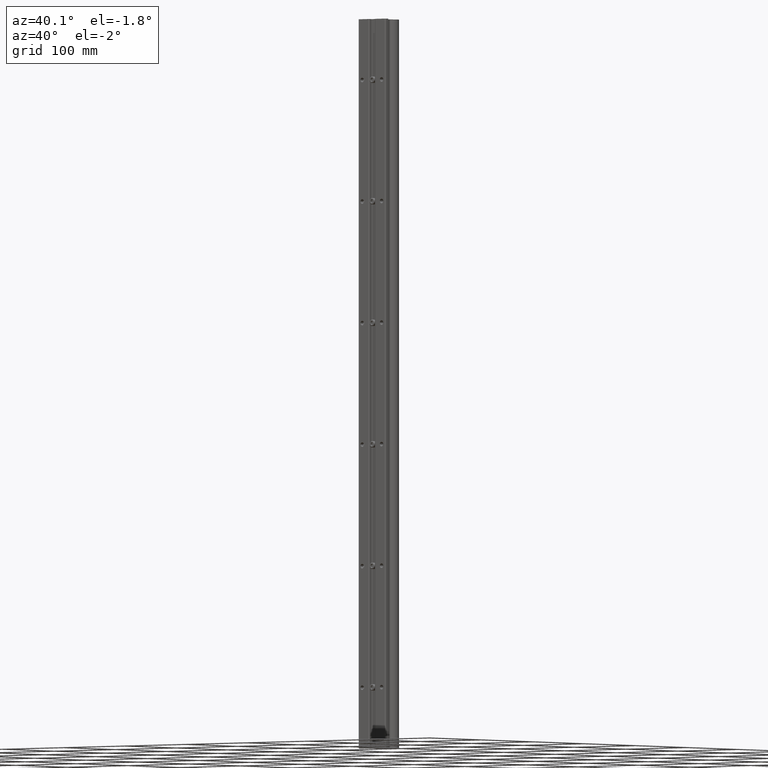
[diagram: clean part render]
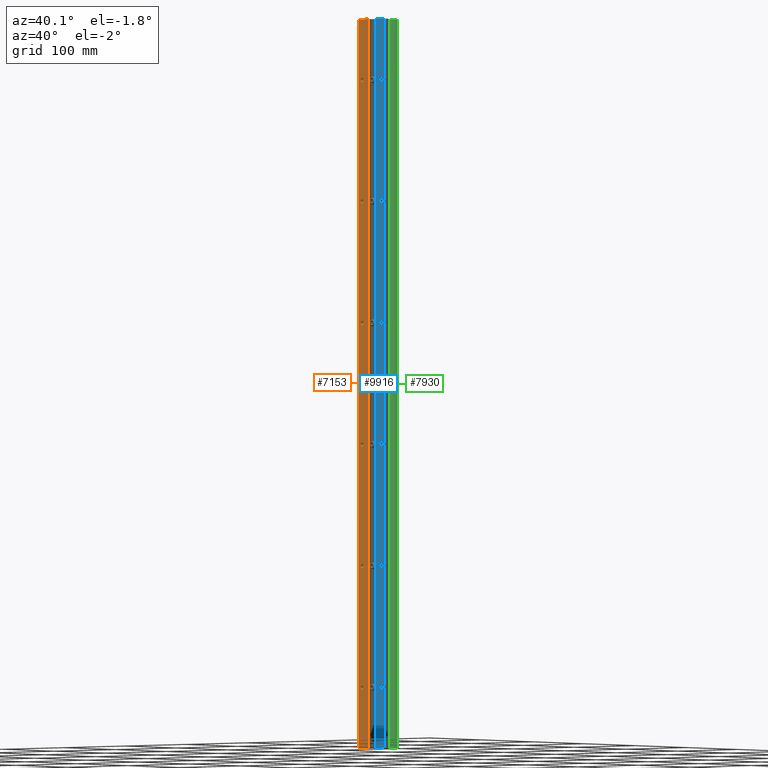
[diagram: same view with three faces highlighted in distinct colors, each labeled with its STEP entity id]
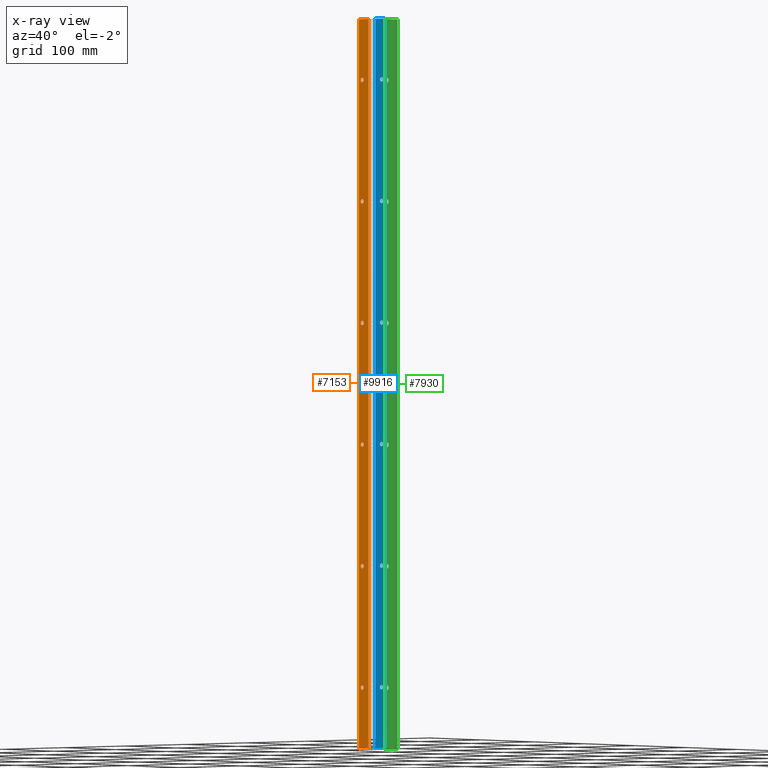
[diagram: x-ray of the same camera — body ghosted, the three highlighted faces saturated]
A machine part, auxiliary view with three faces highlighted in distinct colors.
The next image is the same camera in x-ray (body ghosted, the three faces saturated) — at least one of them is partly hidden behind the body in this view.
Their STEP definitions:

[orange] entity #7153 — the highlighted planar face has unit normal (0, 1, 0).
#98 = VERTEX_POINT ( 'NONE', #11152 ) ;
#162 = EDGE_CURVE ( 'NONE', #1834, #6984, #11191, .T. ) ;
#199 = DIRECTION ( 'NONE',  ( 0.000000000000000000, 0.000000000000000000, 1.000000000000000000 ) ) ;
#209 = VERTEX_POINT ( 'NONE', #13297 ) ;
#301 = EDGE_CURVE ( 'NONE', #13004, #9312, #11631, .T. ) ;
#302 = DIRECTION ( 'NONE',  ( 0.000000000000000000, 0.000000000000000000, 1.000000000000000000 ) ) ;
#388 = FACE_BOUND ( 'NONE', #10994, .T. ) ;
#451 = CARTESIAN_POINT ( 'NONE',  ( -0.2244203811574921603, 0.000000000000000000, 0.000000000000000000 ) ) ;
#452 = CARTESIAN_POINT ( 'NONE',  ( -0.6250000000000000000, 0.000000000000000000, -27.00000000000000355 ) ) ;
#490 = CARTESIAN_POINT ( 'NONE',  ( -0.6250000000000000000, 0.000000000000000000, -21.00000000000000355 ) ) ;
#509 = CARTESIAN_POINT ( 'NONE',  ( -0.8255796188425068571, 0.000000000000000000, -38.10463218188032641 ) ) ;
#651 = DIRECTION ( 'NONE',  ( 0.000000000000000000, 1.000000000000000000, 0.000000000000000000 ) ) ;
#726 = CARTESIAN_POINT ( 'NONE',  ( -0.6250000000000000000, 0.000000000000000000, -27.11050000000000537 ) ) ;
#1118 = DIRECTION ( 'NONE',  ( 0.000000000000000000, 0.000000000000000000, 1.000000000000000000 ) ) ;
#1257 = CIRCLE ( 'NONE', #4995, 0.1104999999999998206 ) ;
#1294 = LINE ( 'NONE', #6553, #6156 ) ;
#1478 = ORIENTED_EDGE ( 'NONE', *, *, #2019, .T. ) ;
#1491 = CARTESIAN_POINT ( 'NONE',  ( -0.6250000000000000000, 0.000000000000000000, -15.00000000000000000 ) ) ;
#1582 = VERTEX_POINT ( 'NONE', #6827 ) ;
#1751 = CARTESIAN_POINT ( 'NONE',  ( -0.8255796188425068571, 0.000000000000000000, -36.00000000000000000 ) ) ;
#1764 = ORIENTED_EDGE ( 'NONE', *, *, #162, .T. ) ;
#1834 = VERTEX_POINT ( 'NONE', #3553 ) ;
#2019 = EDGE_CURVE ( 'NONE', #6984, #1834, #10419, .T. ) ;
#2061 = DIRECTION ( 'NONE',  ( 0.000000000000000000, 1.000000000000000000, 0.000000000000000000 ) ) ;
#2115 = VECTOR ( 'NONE', #11179, 39.37007874015748143 ) ;
#2148 = CIRCLE ( 'NONE', #11579, 0.1105000000000019994 ) ;
#2250 = EDGE_CURVE ( 'NONE', #2498, #9917, #10163, .T. ) ;
#2331 = CIRCLE ( 'NONE', #3865, 0.1105000000000019994 ) ;
#2359 = EDGE_CURVE ( 'NONE', #98, #8036, #12160, .T. ) ;
#2498 = VERTEX_POINT ( 'NONE', #6592 ) ;
#2500 = ORIENTED_EDGE ( 'NONE', *, *, #2250, .T. ) ;
#2509 = CARTESIAN_POINT ( 'NONE',  ( -0.6250000000000000000, 0.000000000000000000, -9.110500000000001819 ) ) ;
#2591 = DIRECTION ( 'NONE',  ( 0.000000000000000000, 0.000000000000000000, 1.000000000000000000 ) ) ;
#2782 = ORIENTED_EDGE ( 'NONE', *, *, #12786, .T. ) ;
#2814 = DIRECTION ( 'NONE',  ( 0.000000000000000000, 0.000000000000000000, 1.000000000000000000 ) ) ;
#2914 = CARTESIAN_POINT ( 'NONE',  ( -0.8255796188425068571, -1.974187026671440255E-17, -36.00000000000000000 ) ) ;
#3022 = AXIS2_PLACEMENT_3D ( 'NONE', #490, #3887, #8107 ) ;
#3087 = AXIS2_PLACEMENT_3D ( 'NONE', #8912, #4091, #5176 ) ;
#3218 = AXIS2_PLACEMENT_3D ( 'NONE', #4310, #7377, #1118 ) ;
#3453 = EDGE_CURVE ( 'NONE', #12714, #4731, #5200, .T. ) ;
#3553 = CARTESIAN_POINT ( 'NONE',  ( -0.6250000000000000000, 0.000000000000000000, -3.110500000000000043 ) ) ;
#3558 = DIRECTION ( 'NONE',  ( 0.000000000000000000, 1.000000000000000000, 0.000000000000000000 ) ) ;
#3865 = AXIS2_PLACEMENT_3D ( 'NONE', #6600, #12912, #10648 ) ;
#3887 = DIRECTION ( 'NONE',  ( 0.000000000000000000, 1.000000000000000000, 0.000000000000000000 ) ) ;
#4001 = CARTESIAN_POINT ( 'NONE',  ( -0.6250000000000000000, 0.000000000000000000, -14.88949999999999996 ) ) ;
#4091 = DIRECTION ( 'NONE',  ( 0.000000000000000000, 1.000000000000000000, 0.000000000000000000 ) ) ;
#4310 = CARTESIAN_POINT ( 'NONE',  ( -0.6250000000000000000, 0.000000000000000000, -9.000000000000001776 ) ) ;
#4435 = ORIENTED_EDGE ( 'NONE', *, *, #301, .T. ) ;
#4577 = CARTESIAN_POINT ( 'NONE',  ( -0.6250000000000000000, 0.000000000000000000, -32.88949999999999818 ) ) ;
#4685 = AXIS2_PLACEMENT_3D ( 'NONE', #11851, #7673, #302 ) ;
#4724 = AXIS2_PLACEMENT_3D ( 'NONE', #12850, #11807, #6537 ) ;
#4731 = VERTEX_POINT ( 'NONE', #10853 ) ;
#4765 = AXIS2_PLACEMENT_3D ( 'NONE', #452, #651, #7850 ) ;
#4995 = AXIS2_PLACEMENT_3D ( 'NONE', #1491, #6881, #2814 ) ;
#5176 = DIRECTION ( 'NONE',  ( 0.000000000000000000, 0.000000000000000000, 1.000000000000000000 ) ) ;
#5200 = CIRCLE ( 'NONE', #3022, 0.1105000000000019994 ) ;
#5278 = DIRECTION ( 'NONE',  ( 0.000000000000000000, 0.000000000000000000, 1.000000000000000000 ) ) ;
#5409 = FACE_BOUND ( 'NONE', #6340, .T. ) ;
#5471 = VECTOR ( 'NONE', #12794, 39.37007874015748143 ) ;
#5790 = CARTESIAN_POINT ( 'NONE',  ( -0.6250000000000000000, 0.000000000000000000, -15.00000000000000000 ) ) ;
#5908 = DIRECTION ( 'NONE',  ( -1.000000000000000000, 0.000000000000000000, 0.000000000000000000 ) ) ;
#6156 = VECTOR ( 'NONE', #10665, 39.37007874015748143 ) ;
#6185 = EDGE_CURVE ( 'NONE', #13004, #9456, #11155, .T. ) ;
#6212 = AXIS2_PLACEMENT_3D ( 'NONE', #12539, #6441, #9335 ) ;
#6230 = DIRECTION ( 'NONE',  ( 0.000000000000000000, 1.000000000000000000, 0.000000000000000000 ) ) ;
#6340 = EDGE_LOOP ( 'NONE', ( #8259, #10159 ) ) ;
#6424 = ORIENTED_EDGE ( 'NONE', *, *, #12584, .F. ) ;
#6441 = DIRECTION ( 'NONE',  ( 0.000000000000000000, 1.000000000000000000, 0.000000000000000000 ) ) ;
#6537 = DIRECTION ( 'NONE',  ( 0.000000000000000000, -0.000000000000000000, 1.000000000000000000 ) ) ;
#6553 = CARTESIAN_POINT ( 'NONE',  ( -2.500000000000000000, 0.000000000000000000, 0.000000000000000000 ) ) ;
#6592 = CARTESIAN_POINT ( 'NONE',  ( -0.6250000000000000000, 0.000000000000000000, -33.11050000000000182 ) ) ;
#6600 = CARTESIAN_POINT ( 'NONE',  ( -0.6250000000000000000, 0.000000000000000000, -21.00000000000000355 ) ) ;
#6827 = CARTESIAN_POINT ( 'NONE',  ( -0.6250000000000000000, 0.000000000000000000, -15.11050000000000004 ) ) ;
#6881 = DIRECTION ( 'NONE',  ( 0.000000000000000000, 1.000000000000000000, 0.000000000000000000 ) ) ;
#6956 = VERTEX_POINT ( 'NONE', #7245 ) ;
#6984 = VERTEX_POINT ( 'NONE', #12562 ) ;
#7047 = EDGE_LOOP ( 'NONE', ( #2782, #11895 ) ) ;
#7113 = EDGE_CURVE ( 'NONE', #4731, #12714, #2331, .T. ) ;
#7153 = ADVANCED_FACE ( 'NONE', ( #9767, #9630, #5409, #11744, #9562, #388, #8675 ), #8609, .F. ) ;
#7245 = CARTESIAN_POINT ( 'NONE',  ( -0.6250000000000000000, 0.000000000000000000, -26.88950000000000173 ) ) ;
#7343 = EDGE_CURVE ( 'NONE', #9456, #209, #9908, .T. ) ;
#7377 = DIRECTION ( 'NONE',  ( 0.000000000000000000, 1.000000000000000000, 0.000000000000000000 ) ) ;
#7623 = ORIENTED_EDGE ( 'NONE', *, *, #7343, .F. ) ;
#7673 = DIRECTION ( 'NONE',  ( 0.000000000000000000, 1.000000000000000000, 0.000000000000000000 ) ) ;
#7850 = DIRECTION ( 'NONE',  ( 0.000000000000000000, 0.000000000000000000, 1.000000000000000000 ) ) ;
#8027 = CIRCLE ( 'NONE', #10899, 0.1104999999999998206 ) ;
#8036 = VERTEX_POINT ( 'NONE', #2509 ) ;
#8107 = DIRECTION ( 'NONE',  ( 0.000000000000000000, 0.000000000000000000, 1.000000000000000000 ) ) ;
#8113 = CIRCLE ( 'NONE', #13202, 0.1105000000000019994 ) ;
#8259 = ORIENTED_EDGE ( 'NONE', *, *, #10024, .T. ) ;
#8429 = EDGE_CURVE ( 'NONE', #8036, #98, #9092, .T. ) ;
#8463 = CARTESIAN_POINT ( 'NONE',  ( -0.2244203811574920215, 0.000000000000000000, -36.00000000000000000 ) ) ;
#8609 = PLANE ( 'NONE',  #4724 ) ;
#8675 = FACE_OUTER_BOUND ( 'NONE', #11627, .T. ) ;
#8912 = CARTESIAN_POINT ( 'NONE',  ( -0.6250000000000000000, 0.000000000000000000, -3.000000000000000444 ) ) ;
#9016 = DIRECTION ( 'NONE',  ( 0.000000000000000000, 0.000000000000000000, 1.000000000000000000 ) ) ;
#9092 = CIRCLE ( 'NONE', #3218, 0.1104999999999998206 ) ;
#9312 = VERTEX_POINT ( 'NONE', #451 ) ;
#9335 = DIRECTION ( 'NONE',  ( 0.000000000000000000, 0.000000000000000000, 1.000000000000000000 ) ) ;
#9350 = CIRCLE ( 'NONE', #4765, 0.1105000000000019994 ) ;
#9456 = VERTEX_POINT ( 'NONE', #2914 ) ;
#9562 = FACE_BOUND ( 'NONE', #10340, .T. ) ;
#9576 = ORIENTED_EDGE ( 'NONE', *, *, #9960, .T. ) ;
#9630 = FACE_BOUND ( 'NONE', #13596, .T. ) ;
#9707 = AXIS2_PLACEMENT_3D ( 'NONE', #10149, #2061, #9016 ) ;
#9767 = FACE_BOUND ( 'NONE', #7047, .T. ) ;
#9908 = LINE ( 'NONE', #509, #2115 ) ;
#9917 = VERTEX_POINT ( 'NONE', #4577 ) ;
#9960 = EDGE_CURVE ( 'NONE', #9917, #2498, #2148, .T. ) ;
#10024 = EDGE_CURVE ( 'NONE', #1582, #13420, #8027, .T. ) ;
#10034 = VERTEX_POINT ( 'NONE', #726 ) ;
#10082 = EDGE_CURVE ( 'NONE', #13420, #1582, #1257, .T. ) ;
#10088 = EDGE_CURVE ( 'NONE', #6956, #10034, #9350, .T. ) ;
#10149 = CARTESIAN_POINT ( 'NONE',  ( -0.6250000000000000000, 0.000000000000000000, -3.000000000000000444 ) ) ;
#10159 = ORIENTED_EDGE ( 'NONE', *, *, #10082, .T. ) ;
#10163 = CIRCLE ( 'NONE', #4685, 0.1105000000000019994 ) ;
#10340 = EDGE_LOOP ( 'NONE', ( #13453, #11682 ) ) ;
#10419 = CIRCLE ( 'NONE', #9707, 0.1104999999999998206 ) ;
#10583 = CARTESIAN_POINT ( 'NONE',  ( -0.6250000000000000000, 0.000000000000000000, -33.00000000000000000 ) ) ;
#10648 = DIRECTION ( 'NONE',  ( 0.000000000000000000, 0.000000000000000000, 1.000000000000000000 ) ) ;
#10665 = DIRECTION ( 'NONE',  ( 1.000000000000000000, 0.000000000000000000, 0.000000000000000000 ) ) ;
#10818 = VECTOR ( 'NONE', #5908, 39.37007874015748143 ) ;
#10853 = CARTESIAN_POINT ( 'NONE',  ( -0.6250000000000000000, 0.000000000000000000, -20.88950000000000173 ) ) ;
#10899 = AXIS2_PLACEMENT_3D ( 'NONE', #5790, #13118, #2591 ) ;
#10994 = EDGE_LOOP ( 'NONE', ( #1764, #1478 ) ) ;
#11152 = CARTESIAN_POINT ( 'NONE',  ( -0.6250000000000000000, 0.000000000000000000, -8.889500000000001734 ) ) ;
#11155 = LINE ( 'NONE', #1751, #10818 ) ;
#11179 = DIRECTION ( 'NONE',  ( 0.000000000000000000, 0.000000000000000000, 1.000000000000000000 ) ) ;
#11191 = CIRCLE ( 'NONE', #3087, 0.1104999999999998206 ) ;
#11356 = ORIENTED_EDGE ( 'NONE', *, *, #7113, .T. ) ;
#11579 = AXIS2_PLACEMENT_3D ( 'NONE', #10583, #3558, #199 ) ;
#11627 = EDGE_LOOP ( 'NONE', ( #6424, #7623, #11720, #4435 ) ) ;
#11631 = LINE ( 'NONE', #12723, #5471 ) ;
#11682 = ORIENTED_EDGE ( 'NONE', *, *, #2359, .T. ) ;
#11720 = ORIENTED_EDGE ( 'NONE', *, *, #6185, .F. ) ;
#11744 = FACE_BOUND ( 'NONE', #13490, .T. ) ;
#11807 = DIRECTION ( 'NONE',  ( 0.000000000000000000, 1.000000000000000000, 0.000000000000000000 ) ) ;
#11851 = CARTESIAN_POINT ( 'NONE',  ( -0.6250000000000000000, 0.000000000000000000, -33.00000000000000000 ) ) ;
#11895 = ORIENTED_EDGE ( 'NONE', *, *, #10088, .T. ) ;
#12160 = CIRCLE ( 'NONE', #6212, 0.1104999999999998206 ) ;
#12539 = CARTESIAN_POINT ( 'NONE',  ( -0.6250000000000000000, 0.000000000000000000, -9.000000000000001776 ) ) ;
#12562 = CARTESIAN_POINT ( 'NONE',  ( -0.6250000000000000000, 0.000000000000000000, -2.889500000000000401 ) ) ;
#12584 = EDGE_CURVE ( 'NONE', #209, #9312, #1294, .T. ) ;
#12714 = VERTEX_POINT ( 'NONE', #13278 ) ;
#12723 = CARTESIAN_POINT ( 'NONE',  ( -0.2244203811574920215, 0.000000000000000000, -38.10463218188032641 ) ) ;
#12786 = EDGE_CURVE ( 'NONE', #10034, #6956, #8113, .T. ) ;
#12794 = DIRECTION ( 'NONE',  ( 0.000000000000000000, 0.000000000000000000, 1.000000000000000000 ) ) ;
#12850 = CARTESIAN_POINT ( 'NONE',  ( -2.500000000000000000, 0.000000000000000000, 0.1250000000000000000 ) ) ;
#12912 = DIRECTION ( 'NONE',  ( 0.000000000000000000, 1.000000000000000000, 0.000000000000000000 ) ) ;
#13004 = VERTEX_POINT ( 'NONE', #8463 ) ;
#13118 = DIRECTION ( 'NONE',  ( 0.000000000000000000, 1.000000000000000000, 0.000000000000000000 ) ) ;
#13202 = AXIS2_PLACEMENT_3D ( 'NONE', #13561, #6230, #5278 ) ;
#13278 = CARTESIAN_POINT ( 'NONE',  ( -0.6250000000000000000, 0.000000000000000000, -21.11050000000000537 ) ) ;
#13297 = CARTESIAN_POINT ( 'NONE',  ( -0.8255796188425107429, 6.658879484556641965E-16, 0.000000000000000000 ) ) ;
#13420 = VERTEX_POINT ( 'NONE', #4001 ) ;
#13453 = ORIENTED_EDGE ( 'NONE', *, *, #8429, .T. ) ;
#13490 = EDGE_LOOP ( 'NONE', ( #13590, #11356 ) ) ;
#13561 = CARTESIAN_POINT ( 'NONE',  ( -0.6250000000000000000, 0.000000000000000000, -27.00000000000000355 ) ) ;
#13590 = ORIENTED_EDGE ( 'NONE', *, *, #3453, .T. ) ;
#13596 = EDGE_LOOP ( 'NONE', ( #2500, #9576 ) ) ;

[blue] entity #9916 — the highlighted planar face has unit normal (0, 1, 0).
#258 = FACE_BOUND ( 'NONE', #4283, .T. ) ;
#265 = CIRCLE ( 'NONE', #9882, 0.1104999999999998206 ) ;
#361 = DIRECTION ( 'NONE',  ( 0.000000000000000000, 1.000000000000000000, 0.000000000000000000 ) ) ;
#363 = DIRECTION ( 'NONE',  ( 0.000000000000000000, 1.000000000000000000, 0.000000000000000000 ) ) ;
#536 = DIRECTION ( 'NONE',  ( 0.000000000000000000, 0.000000000000000000, 1.000000000000000000 ) ) ;
#668 = EDGE_CURVE ( 'NONE', #9090, #4549, #2870, .T. ) ;
#679 = CARTESIAN_POINT ( 'NONE',  ( 0.6250000000000000000, 0.000000000000000000, -27.00000000000000355 ) ) ;
#800 = EDGE_CURVE ( 'NONE', #1190, #2888, #265, .T. ) ;
#931 = CARTESIAN_POINT ( 'NONE',  ( 0.6250000000000000000, 0.000000000000000000, -33.00000000000000000 ) ) ;
#1088 = CARTESIAN_POINT ( 'NONE',  ( 0.6250000000000000000, 0.000000000000000000, -26.88950000000000173 ) ) ;
#1161 = VERTEX_POINT ( 'NONE', #13565 ) ;
#1190 = VERTEX_POINT ( 'NONE', #3365 ) ;
#1196 = ORIENTED_EDGE ( 'NONE', *, *, #13073, .T. ) ;
#1234 = AXIS2_PLACEMENT_3D ( 'NONE', #9627, #7446, #12911 ) ;
#1329 = VERTEX_POINT ( 'NONE', #13165 ) ;
#1600 = VECTOR ( 'NONE', #7111, 39.37007874015748143 ) ;
#1695 = DIRECTION ( 'NONE',  ( 0.000000000000000000, 1.000000000000000000, 0.000000000000000000 ) ) ;
#1872 = CIRCLE ( 'NONE', #9491, 0.1105000000000019994 ) ;
#1891 = CIRCLE ( 'NONE', #10443, 0.1105000000000019994 ) ;
#1944 = ORIENTED_EDGE ( 'NONE', *, *, #12732, .T. ) ;
#1984 = EDGE_LOOP ( 'NONE', ( #10016, #8762 ) ) ;
#2035 = ORIENTED_EDGE ( 'NONE', *, *, #11986, .T. ) ;
#2047 = CARTESIAN_POINT ( 'NONE',  ( 0.6250000000000000000, 0.000000000000000000, -33.11050000000000182 ) ) ;
#2337 = VECTOR ( 'NONE', #5861, 39.37007874015748143 ) ;
#2439 = CARTESIAN_POINT ( 'NONE',  ( 0.6250000000000000000, 0.000000000000000000, -9.000000000000001776 ) ) ;
#2468 = EDGE_CURVE ( 'NONE', #5238, #1329, #2505, .T. ) ;
#2505 = CIRCLE ( 'NONE', #10844, 0.1104999999999998206 ) ;
#2553 = VERTEX_POINT ( 'NONE', #5931 ) ;
#2642 = ORIENTED_EDGE ( 'NONE', *, *, #12143, .T. ) ;
#2683 = EDGE_LOOP ( 'NONE', ( #3032, #1196 ) ) ;
#2811 = AXIS2_PLACEMENT_3D ( 'NONE', #10069, #5661, #6662 ) ;
#2870 = LINE ( 'NONE', #10058, #7026 ) ;
#2888 = VERTEX_POINT ( 'NONE', #6533 ) ;
#2960 = DIRECTION ( 'NONE',  ( 0.000000000000000000, 0.000000000000000000, 1.000000000000000000 ) ) ;
#3032 = ORIENTED_EDGE ( 'NONE', *, *, #2468, .T. ) ;
#3191 = EDGE_LOOP ( 'NONE', ( #4469, #12015 ) ) ;
#3199 = DIRECTION ( 'NONE',  ( 0.000000000000000000, 0.000000000000000000, 1.000000000000000000 ) ) ;
#3354 = FACE_BOUND ( 'NONE', #1984, .T. ) ;
#3365 = CARTESIAN_POINT ( 'NONE',  ( 0.6250000000000000000, 0.000000000000000000, -9.110500000000001819 ) ) ;
#3506 = CARTESIAN_POINT ( 'NONE',  ( 0.2244203811574860263, 9.860263852131950147E-16, 0.000000000000000000 ) ) ;
#3598 = VERTEX_POINT ( 'NONE', #5550 ) ;
#3643 = VERTEX_POINT ( 'NONE', #12017 ) ;
#3685 = CARTESIAN_POINT ( 'NONE',  ( 0.6250000000000000000, 0.000000000000000000, -15.00000000000000000 ) ) ;
#3707 = CIRCLE ( 'NONE', #11643, 0.1104999999999998206 ) ;
#3781 = CARTESIAN_POINT ( 'NONE',  ( 0.6250000000000000000, 0.000000000000000000, -9.000000000000001776 ) ) ;
#4283 = EDGE_LOOP ( 'NONE', ( #11371, #2642 ) ) ;
#4290 = LINE ( 'NONE', #4784, #2337 ) ;
#4299 = VERTEX_POINT ( 'NONE', #3506 ) ;
#4336 = CIRCLE ( 'NONE', #2811, 0.1105000000000019994 ) ;
#4396 = CARTESIAN_POINT ( 'NONE',  ( 0.8255796188425067461, 0.000000000000000000, 0.000000000000000000 ) ) ;
#4469 = ORIENTED_EDGE ( 'NONE', *, *, #13492, .T. ) ;
#4549 = VERTEX_POINT ( 'NONE', #4396 ) ;
#4561 = VERTEX_POINT ( 'NONE', #1088 ) ;
#4637 = CARTESIAN_POINT ( 'NONE',  ( 0.6250000000000000000, 0.000000000000000000, -2.889500000000000401 ) ) ;
#4691 = CARTESIAN_POINT ( 'NONE',  ( 0.6250000000000000000, 0.000000000000000000, -15.00000000000000000 ) ) ;
#4784 = CARTESIAN_POINT ( 'NONE',  ( -2.500000000000000000, 0.000000000000000000, 0.000000000000000000 ) ) ;
#4786 = CARTESIAN_POINT ( 'NONE',  ( 0.6250000000000000000, 0.000000000000000000, -21.00000000000000355 ) ) ;
#4882 = DIRECTION ( 'NONE',  ( 0.000000000000000000, 1.000000000000000000, 0.000000000000000000 ) ) ;
#4898 = CARTESIAN_POINT ( 'NONE',  ( 0.2244203811574917440, 4.268512490100411279E-18, -36.00000000000000000 ) ) ;
#5022 = VERTEX_POINT ( 'NONE', #4637 ) ;
#5078 = CARTESIAN_POINT ( 'NONE',  ( 0.2244203811574917440, 0.000000000000000000, -36.00000000000000000 ) ) ;
#5115 = AXIS2_PLACEMENT_3D ( 'NONE', #13402, #5939, #2960 ) ;
#5178 = ORIENTED_EDGE ( 'NONE', *, *, #8337, .F. ) ;
#5184 = CARTESIAN_POINT ( 'NONE',  ( 0.6250000000000000000, 0.000000000000000000, -33.00000000000000000 ) ) ;
#5238 = VERTEX_POINT ( 'NONE', #13216 ) ;
#5286 = EDGE_LOOP ( 'NONE', ( #11530, #1944 ) ) ;
#5550 = CARTESIAN_POINT ( 'NONE',  ( 0.6250000000000000000, 0.000000000000000000, -27.11050000000000537 ) ) ;
#5661 = DIRECTION ( 'NONE',  ( 0.000000000000000000, 1.000000000000000000, 0.000000000000000000 ) ) ;
#5734 = DIRECTION ( 'NONE',  ( 0.000000000000000000, 1.000000000000000000, 0.000000000000000000 ) ) ;
#5744 = EDGE_CURVE ( 'NONE', #9090, #7861, #9430, .T. ) ;
#5787 = CIRCLE ( 'NONE', #8638, 0.1104999999999998206 ) ;
#5861 = DIRECTION ( 'NONE',  ( 1.000000000000000000, 0.000000000000000000, 0.000000000000000000 ) ) ;
#5931 = CARTESIAN_POINT ( 'NONE',  ( 0.6250000000000000000, 0.000000000000000000, -3.110500000000000043 ) ) ;
#5939 = DIRECTION ( 'NONE',  ( 0.000000000000000000, 1.000000000000000000, 0.000000000000000000 ) ) ;
#6138 = CIRCLE ( 'NONE', #11644, 0.1104999999999998206 ) ;
#6180 = ORIENTED_EDGE ( 'NONE', *, *, #668, .T. ) ;
#6533 = CARTESIAN_POINT ( 'NONE',  ( 0.6250000000000000000, 0.000000000000000000, -8.889500000000001734 ) ) ;
#6574 = DIRECTION ( 'NONE',  ( 0.000000000000000000, 0.000000000000000000, 1.000000000000000000 ) ) ;
#6662 = DIRECTION ( 'NONE',  ( 0.000000000000000000, 0.000000000000000000, 1.000000000000000000 ) ) ;
#6750 = AXIS2_PLACEMENT_3D ( 'NONE', #4691, #361, #8846 ) ;
#7026 = VECTOR ( 'NONE', #11225, 39.37007874015748143 ) ;
#7111 = DIRECTION ( 'NONE',  ( -1.000000000000000000, 0.000000000000000000, 0.000000000000000000 ) ) ;
#7382 = ORIENTED_EDGE ( 'NONE', *, *, #8372, .F. ) ;
#7446 = DIRECTION ( 'NONE',  ( 0.000000000000000000, 1.000000000000000000, 0.000000000000000000 ) ) ;
#7714 = EDGE_CURVE ( 'NONE', #3643, #1161, #1872, .T. ) ;
#7792 = VERTEX_POINT ( 'NONE', #2047 ) ;
#7861 = VERTEX_POINT ( 'NONE', #4898 ) ;
#7912 = DIRECTION ( 'NONE',  ( 0.000000000000000000, 0.000000000000000000, 1.000000000000000000 ) ) ;
#8041 = DIRECTION ( 'NONE',  ( 0.000000000000000000, 0.000000000000000000, 1.000000000000000000 ) ) ;
#8262 = EDGE_CURVE ( 'NONE', #7792, #9669, #1891, .T. ) ;
#8337 = EDGE_CURVE ( 'NONE', #7861, #4299, #10400, .T. ) ;
#8372 = EDGE_CURVE ( 'NONE', #4299, #4549, #4290, .T. ) ;
#8487 = FACE_BOUND ( 'NONE', #3191, .T. ) ;
#8608 = FACE_BOUND ( 'NONE', #13445, .T. ) ;
#8638 = AXIS2_PLACEMENT_3D ( 'NONE', #9167, #12647, #9309 ) ;
#8762 = ORIENTED_EDGE ( 'NONE', *, *, #11828, .T. ) ;
#8846 = DIRECTION ( 'NONE',  ( 0.000000000000000000, 0.000000000000000000, 1.000000000000000000 ) ) ;
#9033 = CIRCLE ( 'NONE', #11703, 0.1105000000000019994 ) ;
#9090 = VERTEX_POINT ( 'NONE', #10446 ) ;
#9167 = CARTESIAN_POINT ( 'NONE',  ( 0.6250000000000000000, 0.000000000000000000, -3.000000000000000444 ) ) ;
#9267 = DIRECTION ( 'NONE',  ( 0.000000000000000000, 1.000000000000000000, 0.000000000000000000 ) ) ;
#9291 = DIRECTION ( 'NONE',  ( 0.000000000000000000, 1.000000000000000000, 0.000000000000000000 ) ) ;
#9309 = DIRECTION ( 'NONE',  ( 0.000000000000000000, 0.000000000000000000, 1.000000000000000000 ) ) ;
#9430 = LINE ( 'NONE', #5078, #1600 ) ;
#9491 = AXIS2_PLACEMENT_3D ( 'NONE', #4786, #1695, #10066 ) ;
#9525 = CARTESIAN_POINT ( 'NONE',  ( 0.2244203811574917440, 0.000000000000000000, -38.10463218188032641 ) ) ;
#9596 = EDGE_LOOP ( 'NONE', ( #7382, #5178, #12953, #6180 ) ) ;
#9627 = CARTESIAN_POINT ( 'NONE',  ( -2.500000000000000000, 0.000000000000000000, 0.1250000000000000000 ) ) ;
#9669 = VERTEX_POINT ( 'NONE', #12166 ) ;
#9700 = FACE_BOUND ( 'NONE', #2683, .T. ) ;
#9882 = AXIS2_PLACEMENT_3D ( 'NONE', #2439, #363, #6574 ) ;
#9916 = ADVANCED_FACE ( 'NONE', ( #8608, #3354, #11805, #9700, #258, #8487, #12774 ), #10777, .F. ) ;
#9995 = CARTESIAN_POINT ( 'NONE',  ( 0.6250000000000000000, 0.000000000000000000, -3.000000000000000444 ) ) ;
#10016 = ORIENTED_EDGE ( 'NONE', *, *, #10057, .T. ) ;
#10057 = EDGE_CURVE ( 'NONE', #3598, #4561, #4336, .T. ) ;
#10058 = CARTESIAN_POINT ( 'NONE',  ( 0.8255796188425064130, 0.000000000000000000, -38.10463218188032641 ) ) ;
#10066 = DIRECTION ( 'NONE',  ( 0.000000000000000000, 0.000000000000000000, 1.000000000000000000 ) ) ;
#10069 = CARTESIAN_POINT ( 'NONE',  ( 0.6250000000000000000, 0.000000000000000000, -27.00000000000000355 ) ) ;
#10400 = LINE ( 'NONE', #9525, #11317 ) ;
#10443 = AXIS2_PLACEMENT_3D ( 'NONE', #5184, #9267, #8041 ) ;
#10446 = CARTESIAN_POINT ( 'NONE',  ( 0.8255796188425064130, 0.000000000000000000, -36.00000000000000000 ) ) ;
#10777 = PLANE ( 'NONE',  #1234 ) ;
#10844 = AXIS2_PLACEMENT_3D ( 'NONE', #3685, #11929, #7912 ) ;
#10998 = ORIENTED_EDGE ( 'NONE', *, *, #7714, .T. ) ;
#11183 = DIRECTION ( 'NONE',  ( 0.000000000000000000, 1.000000000000000000, 0.000000000000000000 ) ) ;
#11225 = DIRECTION ( 'NONE',  ( 0.000000000000000000, 0.000000000000000000, 1.000000000000000000 ) ) ;
#11317 = VECTOR ( 'NONE', #3199, 39.37007874015748143 ) ;
#11371 = ORIENTED_EDGE ( 'NONE', *, *, #8262, .T. ) ;
#11530 = ORIENTED_EDGE ( 'NONE', *, *, #800, .T. ) ;
#11643 = AXIS2_PLACEMENT_3D ( 'NONE', #9995, #11183, #12070 ) ;
#11644 = AXIS2_PLACEMENT_3D ( 'NONE', #3781, #5734, #536 ) ;
#11694 = CIRCLE ( 'NONE', #5115, 0.1105000000000019994 ) ;
#11703 = AXIS2_PLACEMENT_3D ( 'NONE', #931, #9291, #13544 ) ;
#11805 = FACE_BOUND ( 'NONE', #5286, .T. ) ;
#11828 = EDGE_CURVE ( 'NONE', #4561, #3598, #12779, .T. ) ;
#11929 = DIRECTION ( 'NONE',  ( 0.000000000000000000, 1.000000000000000000, 0.000000000000000000 ) ) ;
#11986 = EDGE_CURVE ( 'NONE', #1161, #3643, #11694, .T. ) ;
#12015 = ORIENTED_EDGE ( 'NONE', *, *, #12920, .T. ) ;
#12017 = CARTESIAN_POINT ( 'NONE',  ( 0.6250000000000000000, 0.000000000000000000, -20.88950000000000173 ) ) ;
#12070 = DIRECTION ( 'NONE',  ( 0.000000000000000000, 0.000000000000000000, 1.000000000000000000 ) ) ;
#12143 = EDGE_CURVE ( 'NONE', #9669, #7792, #9033, .T. ) ;
#12166 = CARTESIAN_POINT ( 'NONE',  ( 0.6250000000000000000, 0.000000000000000000, -32.88949999999999818 ) ) ;
#12647 = DIRECTION ( 'NONE',  ( 0.000000000000000000, 1.000000000000000000, 0.000000000000000000 ) ) ;
#12732 = EDGE_CURVE ( 'NONE', #2888, #1190, #6138, .T. ) ;
#12749 = CIRCLE ( 'NONE', #6750, 0.1104999999999998206 ) ;
#12774 = FACE_OUTER_BOUND ( 'NONE', #9596, .T. ) ;
#12779 = CIRCLE ( 'NONE', #13454, 0.1105000000000019994 ) ;
#12911 = DIRECTION ( 'NONE',  ( 0.000000000000000000, -0.000000000000000000, 1.000000000000000000 ) ) ;
#12920 = EDGE_CURVE ( 'NONE', #5022, #2553, #3707, .T. ) ;
#12953 = ORIENTED_EDGE ( 'NONE', *, *, #5744, .F. ) ;
#13073 = EDGE_CURVE ( 'NONE', #1329, #5238, #12749, .T. ) ;
#13082 = DIRECTION ( 'NONE',  ( 0.000000000000000000, 0.000000000000000000, 1.000000000000000000 ) ) ;
#13165 = CARTESIAN_POINT ( 'NONE',  ( 0.6250000000000000000, 0.000000000000000000, -14.88949999999999996 ) ) ;
#13216 = CARTESIAN_POINT ( 'NONE',  ( 0.6250000000000000000, 0.000000000000000000, -15.11050000000000004 ) ) ;
#13402 = CARTESIAN_POINT ( 'NONE',  ( 0.6250000000000000000, 0.000000000000000000, -21.00000000000000355 ) ) ;
#13445 = EDGE_LOOP ( 'NONE', ( #2035, #10998 ) ) ;
#13454 = AXIS2_PLACEMENT_3D ( 'NONE', #679, #4882, #13082 ) ;
#13492 = EDGE_CURVE ( 'NONE', #2553, #5022, #5787, .T. ) ;
#13544 = DIRECTION ( 'NONE',  ( 0.000000000000000000, 0.000000000000000000, 1.000000000000000000 ) ) ;
#13565 = CARTESIAN_POINT ( 'NONE',  ( 0.6250000000000000000, 0.000000000000000000, -21.11050000000000537 ) ) ;

[green] entity #7930 — the highlighted cylindrical surface (edge-blend (fillet) strip) has radius 9.525 mm, axis along (0, 0, 1).
#26 = CARTESIAN_POINT ( 'NONE',  ( 0.07629384564803012858, 1.132778678738118217, -27.09934949839404794 ) ) ;
#39 = B_SPLINE_CURVE_WITH_KNOTS ( 'NONE', 3,
 ( #5913, #12018, #13285, #10982, #4672, #3788, #4815, #5818, #3581, #1579, #11058, #9860, #1648, #7942, #10871, #12175, #7808, #5737, #9937, #543, #3872, #3714, #7872, #5895, #8960, #6906, #1733, #7730, #11957, #411, #8016, #1444 ),
 .UNSPECIFIED., .F., .F.,
 ( 4, 2, 2, 2, 2, 2, 2, 2, 2, 2, 2, 2, 2, 2, 2, 4 ),
 ( 1.566876027423624901E-18, 0.0006249108828500791806, 0.001249821765700156843, 0.001874732648550234398, 0.002499643531400312386, 0.003749465297100469229, 0.004374376179950528569, 0.004999287062800588342, 0.005624197945650648983, 0.006249108828500708757, 0.006874019711350768530, 0.007498930594200827436, 0.008123841477050888077, 0.008748752359900947850, 0.009373663242751009358, 0.009998574125601069132 ),
 .UNSPECIFIED. ) ;
#60 = CARTESIAN_POINT ( 'NONE',  ( 0.1209654137732490975, 1.145041858245552602, -21.03256067885499547 ) ) ;
#114 = CARTESIAN_POINT ( 'NONE',  ( -0.1185723957054416744, 1.144223880012037897, -20.95958423967964634 ) ) ;
#127 = CARTESIAN_POINT ( 'NONE',  ( 0.01645178346242872139, 1.125272950837599151, -20.87581176438753161 ) ) ;
#159 = CARTESIAN_POINT ( 'NONE',  ( 0.1185326186922871922, 1.144210938468774863, -15.04051479709303329 ) ) ;
#300 = CARTESIAN_POINT ( 'NONE',  ( -0.1209544131638255610, 1.145038121379763130, -20.96740706274432853 ) ) ;
#312 = VERTEX_POINT ( 'NONE', #6678 ) ;
#330 = CARTESIAN_POINT ( 'NONE',  ( -0.1122437319770848707, 1.142176852049964664, -32.94437454415956523 ) ) ;
#347 = CARTESIAN_POINT ( 'NONE',  ( -0.1122437319770848707, 1.142176852049964664, -26.94437454415957234 ) ) ;
#364 = CARTESIAN_POINT ( 'NONE',  ( -0.008323276755297806181, 1.125000000000000666, -21.12499999999999289 ) ) ;
#409 = CARTESIAN_POINT ( 'NONE',  ( -0.1250040618164579287, 1.146448045475507937, -26.99184174636232569 ) ) ;
#411 = CARTESIAN_POINT ( 'NONE',  ( -0.01648624209988772474, 1.125274797949223693, -2.875817358519734857 ) ) ;
#450 = CARTESIAN_POINT ( 'NONE',  ( -0.05552849340515821769, 1.129056354555277197, -14.88771445111031433 ) ) ;
#455 = CARTESIAN_POINT ( 'NONE',  ( -0.03267150337677446337, 1.126337925261778006, -32.87906325004080088 ) ) ;
#472 = CARTESIAN_POINT ( 'NONE',  ( -0.1185723957054416744, 1.144223880012037897, -26.95958423967964634 ) ) ;
#478 = VERTEX_POINT ( 'NONE', #9565 ) ;
#506 = CARTESIAN_POINT ( 'NONE',  ( -0.08260014785982991437, 1.134162219015206974, -14.90582778898214755 ) ) ;
#523 = VERTEX_POINT ( 'NONE', #3833 ) ;
#527 = CARTESIAN_POINT ( 'NONE',  ( 0.05563716654445806375, 1.129072035165736620, -9.112234197709792483 ) ) ;
#530 = DIRECTION ( 'NONE',  ( 0.000000000000000000, 0.000000000000000000, 1.000000000000000000 ) ) ;
#540 = CARTESIAN_POINT ( 'NONE',  ( -0.1185237875825029819, 1.144208060990028475, -27.04053697796968692 ) ) ;
#543 = CARTESIAN_POINT ( 'NONE',  ( -0.1122437319770860781, 1.142176852049964886, -2.944374544159568341 ) ) ;
#623 = EDGE_CURVE ( 'NONE', #312, #6058, #7410, .T. ) ;
#631 = CARTESIAN_POINT ( 'NONE',  ( 0.1185730390998939593, 1.144224147783138967, -32.95958850644444738 ) ) ;
#646 = CARTESIAN_POINT ( 'NONE',  ( -0.04047420807541153576, 1.127113368225226564, -14.88145339924749067 ) ) ;
#647 = VERTEX_POINT ( 'NONE', #6003 ) ;
#663 = CARTESIAN_POINT ( 'NONE',  ( 0.03266774632321148980, 1.126337263159386426, -8.879061183262795254 ) ) ;
#672 = ORIENTED_EDGE ( 'NONE', *, *, #9815, .F. ) ;
#699 = CARTESIAN_POINT ( 'NONE',  ( 0.01649640680358361797, 1.125276643179093261, -33.12417687962140889 ) ) ;
#732 = CARTESIAN_POINT ( 'NONE',  ( 6.354236240045021498E-17, 1.125000000000000222, -3.124999999999999556 ) ) ;
#742 = FACE_BOUND ( 'NONE', #6668, .T. ) ;
#778 = CARTESIAN_POINT ( 'NONE',  ( 0.04052490638182691673, 1.127118274301450507, -33.11853160506549187 ) ) ;
#881 = CARTESIAN_POINT ( 'NONE',  ( -0.08270888014692261148, 1.134187380241394205, -9.094072904998501627 ) ) ;
#962 = CARTESIAN_POINT ( 'NONE',  ( 0.008197098410217882117, 1.125000000000000666, -26.87500000000000355 ) ) ;
#983 = AXIS2_PLACEMENT_3D ( 'NONE', #12364, #2971, #6223 ) ;
#1007 = EDGE_CURVE ( 'NONE', #523, #13535, #5151, .T. ) ;
#1010 = CARTESIAN_POINT ( 'NONE',  ( 0.1083932797338998250, 1.140975780241187287, -3.062792534659057875 ) ) ;
#1039 = CARTESIAN_POINT ( 'NONE',  ( 0.09413140612909383365, 1.136958663453053076, -27.08264325906430159 ) ) ;
#1071 = CARTESIAN_POINT ( 'NONE',  ( -0.09986561048412578856, 1.138350464728789646, -9.076900852288481758 ) ) ;
#1094 = CARTESIAN_POINT ( 'NONE',  ( 0.1249990179307813587, 1.146446262192827303, -27.00825176967057928 ) ) ;
#1125 = CARTESIAN_POINT ( 'NONE',  ( 0.06278460617193117044, 1.130229337425312286, -21.10839357426871032 ) ) ;
#1128 = CARTESIAN_POINT ( 'NONE',  ( -0.03267150337677333927, 1.126337925261778006, -8.879063250040800881 ) ) ;
#1163 = CARTESIAN_POINT ( 'NONE',  ( 0.06287984198914917111, 1.130245640486010172, -14.89166189727124490 ) ) ;
#1195 = CARTESIAN_POINT ( 'NONE',  ( 0.09927870683307976618, 1.138349295819228946, -21.07639204061896976 ) ) ;
#1211 = CARTESIAN_POINT ( 'NONE',  ( 0.1241678343262124090, 1.146149400175752842, -32.98343865459457902 ) ) ;
#1237 = CARTESIAN_POINT ( 'NONE',  ( 0.03266774632321109428, 1.126337263159386870, -14.87906118326279525 ) ) ;
#1298 = CARTESIAN_POINT ( 'NONE',  ( 0.08263376477293288280, 1.134169548060881993, -14.90585498830494160 ) ) ;
#1321 = CARTESIAN_POINT ( 'NONE',  ( -0.09986561048412712083, 1.138350464728789424, -21.07690085228848176 ) ) ;
#1336 = CARTESIAN_POINT ( 'NONE',  ( -0.04047420807541071003, 1.127113368225226786, -8.881453399247499547 ) ) ;
#1350 = CARTESIAN_POINT ( 'NONE',  ( -0.01649604049918402399, 1.125276581205358895, -33.12417707294684277 ) ) ;
#1389 = ORIENTED_EDGE ( 'NONE', *, *, #2932, .T. ) ;
#1397 = EDGE_CURVE ( 'NONE', #3886, #9999, #6601, .T. ) ;
#1423 = CARTESIAN_POINT ( 'NONE',  ( -0.06280237164814474193, 1.130232016876234979, -33.10838502098084035 ) ) ;
#1444 = CARTESIAN_POINT ( 'NONE',  ( 2.097213048187297684E-15, 1.125000000000000222, -2.875000000000000000 ) ) ;
#1493 = CARTESIAN_POINT ( 'NONE',  ( -0.05552849340515757237, 1.129056354555277197, -32.88771445111031255 ) ) ;
#1509 = CARTESIAN_POINT ( 'NONE',  ( -0.08270888014692441559, 1.134187380241394427, -27.09407290499849452 ) ) ;
#1540 = VERTEX_POINT ( 'NONE', #3384 ) ;
#1549 = CARTESIAN_POINT ( 'NONE',  ( -0.1241888673462582526, 1.146156742583906318, -15.01643345193981638 ) ) ;
#1564 = CARTESIAN_POINT ( 'NONE',  ( 0.1209500571403314823, 1.145036647307089650, -8.967396121079699967 ) ) ;
#1572 = CARTESIAN_POINT ( 'NONE',  ( -0.05552849340515757237, 1.129056354555277197, -20.88771445111031255 ) ) ;
#1576 = CARTESIAN_POINT ( 'NONE',  ( -0.08260014785982891516, 1.134162219015206974, -26.90582778898214400 ) ) ;
#1579 = CARTESIAN_POINT ( 'NONE',  ( -0.09986561048412598285, 1.138350464728789202, -3.076900852288477761 ) ) ;
#1620 = CARTESIAN_POINT ( 'NONE',  ( -0.3749999999999999445, 1.500000000000000222, 0.000000000000000000 ) ) ;
#1634 = FACE_BOUND ( 'NONE', #4351, .T. ) ;
#1645 = CARTESIAN_POINT ( 'NONE',  ( -0.1249959074323481328, 1.146445162465756562, -27.00828225200010024 ) ) ;
#1648 = CARTESIAN_POINT ( 'NONE',  ( -0.1209558938445397108, 1.145038597399876457, -3.032597620460292021 ) ) ;
#1717 = CARTESIAN_POINT ( 'NONE',  ( 0.1241678343262125617, 1.146149400175753064, -8.983438654594586126 ) ) ;
#1733 = CARTESIAN_POINT ( 'NONE',  ( -0.05552849340515753074, 1.129056354555277419, -2.887714451110316105 ) ) ;
#1758 = B_SPLINE_CURVE_WITH_KNOTS ( 'NONE', 3,
 ( #10921, #3987, #5676, #7729, #6825, #3712, #12091, #6623, #1509, #9936, #9792, #540, #11056, #1931, #1645, #409, #4602, #9858, #472, #347, #8760, #3644, #5006, #1576, #12996, #11955, #7653, #11887, #4534, #6020, #2556, #6685 ),
 .UNSPECIFIED., .F., .F.,
 ( 4, 2, 2, 2, 2, 2, 2, 2, 2, 2, 2, 2, 2, 2, 2, 4 ),
 ( 2.166493291249464291E-17, 0.0006249108828499984076, 0.001249821765699975131, 0.001874732648549952072, 0.002499643531399928578, 0.003749465297100115779, 0.004374376179950210247, 0.004999287062800303848, 0.005624197945650399183, 0.006249108828500492784, 0.006874019711350587251, 0.007498930594200681719, 0.008123841477050775320, 0.008748752359900869788, 0.009373663242750964256, 0.009998574125601058724 ),
 .UNSPECIFIED. ) ;
#1777 = CARTESIAN_POINT ( 'NONE',  ( -0.1250040618164579287, 1.146448045475507715, -14.99184174636233458 ) ) ;
#1781 = CARTESIAN_POINT ( 'NONE',  ( 0.06278460617192940796, 1.130229337425312286, -3.108393574268719206 ) ) ;
#1854 = CARTESIAN_POINT ( 'NONE',  ( 0.07637577337513082321, 1.132795830430083361, -2.900713745801356769 ) ) ;
#1866 = CARTESIAN_POINT ( 'NONE',  ( 0.1241918054842636593, 1.146157790565254464, -9.016408064705826675 ) ) ;
#1924 = CARTESIAN_POINT ( 'NONE',  ( -0.05564380897423275296, 1.129073007461675715, -9.112231007283426720 ) ) ;
#1926 = CARTESIAN_POINT ( 'NONE',  ( 0.09994538311842336709, 1.138369034816674841, -2.923172858807872920 ) ) ;
#1931 = CARTESIAN_POINT ( 'NONE',  ( -0.1241888673462583775, 1.146156742583905874, -27.01643345193981460 ) ) ;
#1951 = CARTESIAN_POINT ( 'NONE',  ( 0.06287984198914750578, 1.130245640486009506, -26.89166189727123424 ) ) ;
#1988 = CARTESIAN_POINT ( 'NONE',  ( 0.1249990179307813587, 1.146446262192827303, -21.00825176967056507 ) ) ;
#1993 = ORIENTED_EDGE ( 'NONE', *, *, #7901, .T. ) ;
#2001 = CARTESIAN_POINT ( 'NONE',  ( -0.3749999999999999445, 1.500000000000000222, -36.00000000000000000 ) ) ;
#2124 = CARTESIAN_POINT ( 'NONE',  ( 0.06287984198914750578, 1.130245640486009506, -20.89166189727123069 ) ) ;
#2127 = CARTESIAN_POINT ( 'NONE',  ( -0.01649604049918379153, 1.125276581205358672, -9.124177072946856981 ) ) ;
#2154 = CARTESIAN_POINT ( 'NONE',  ( 2.097213048189285219E-15, 1.125000000000000222, -26.87499999999999645 ) ) ;
#2193 = CARTESIAN_POINT ( 'NONE',  ( 0.08267656770183443027, 1.134179936560776314, -21.09410215216271212 ) ) ;
#2222 = CARTESIAN_POINT ( 'NONE',  ( 0.09413140612909365323, 1.136958663453053076, -15.08264325906429981 ) ) ;
#2291 = CARTESIAN_POINT ( 'NONE',  ( 0.06278460617192903326, 1.130229337425312286, -15.10839357426871921 ) ) ;
#2381 = CARTESIAN_POINT ( 'NONE',  ( -0.01649604049918402399, 1.125276581205358895, -21.12417707294684988 ) ) ;
#2421 = CARTESIAN_POINT ( 'NONE',  ( 6.264928769732560272E-17, 1.125000000000000222, -15.12499999999999822 ) ) ;
#2494 = CARTESIAN_POINT ( 'NONE',  ( 2.097213048187297684E-15, 1.125000000000000222, -2.875000000000000000 ) ) ;
#2516 = EDGE_LOOP ( 'NONE', ( #3972, #5755 ) ) ;
#2536 = CARTESIAN_POINT ( 'NONE',  ( -0.1185723957054416744, 1.144223880012037897, -32.95958423967964279 ) ) ;
#2556 = CARTESIAN_POINT ( 'NONE',  ( -0.008199185978417126291, 1.125000000000000000, -26.87500000000000355 ) ) ;
#2587 = CARTESIAN_POINT ( 'NONE',  ( -0.06280237164814483908, 1.130232016876234979, -15.10838502098084923 ) ) ;
#2599 = CARTESIAN_POINT ( 'NONE',  ( 0.04048540440161972620, 1.127114285105013103, -8.881456091856273716 ) ) ;
#2637 = CARTESIAN_POINT ( 'NONE',  ( 0.05556862442868262808, 1.129062064057325454, -32.88773311215386030 ) ) ;
#2653 = CARTESIAN_POINT ( 'NONE',  ( -0.07635022463610467713, 1.132790423690561044, -14.90069373361028227 ) ) ;
#2672 = CARTESIAN_POINT ( 'NONE',  ( 0.06287984198914953193, 1.130245640486009728, -8.891661897271243120 ) ) ;
#2718 = CARTESIAN_POINT ( 'NONE',  ( 0.01645178346242872139, 1.125272950837599151, -32.87581176438752095 ) ) ;
#2719 = AXIS2_PLACEMENT_3D ( 'NONE', #3252, #13588, #6375 ) ;
#2751 = CARTESIAN_POINT ( 'NONE',  ( -8.374947378705658195E-17, 1.125000000000000222, -9.125000000000000000 ) ) ;
#2818 = CARTESIAN_POINT ( 'NONE',  ( 0.1209500571403312325, 1.145036647307089428, -2.967396121079697746 ) ) ;
#2819 = EDGE_LOOP ( 'NONE', ( #672, #6775, #12345, #7659 ) ) ;
#2823 = CARTESIAN_POINT ( 'NONE',  ( 0.01649640680358238978, 1.125276643179092817, -9.124176879621410663 ) ) ;
#2885 = CARTESIAN_POINT ( 'NONE',  ( 0.03266774632321121918, 1.126337263159386426, -2.879061183262796586 ) ) ;
#2892 = EDGE_CURVE ( 'NONE', #10565, #647, #4135, .T. ) ;
#2895 = CARTESIAN_POINT ( 'NONE',  ( 0.1090963977429626197, 1.141158716857181288, -8.936805113730583727 ) ) ;
#2915 = CARTESIAN_POINT ( 'NONE',  ( 0.08263376477293436773, 1.134169548060882216, -26.90585498830494871 ) ) ;
#2932 = EDGE_CURVE ( 'NONE', #1540, #10654, #39, .T. ) ;
#2942 = EDGE_LOOP ( 'NONE', ( #11313, #1993 ) ) ;
#2962 = CARTESIAN_POINT ( 'NONE',  ( -0.1185723957054424654, 1.144223880012038563, -8.959584239679655226 ) ) ;
#2971 = DIRECTION ( 'NONE',  ( 0.000000000000000000, 0.000000000000000000, 1.000000000000000000 ) ) ;
#3031 = CARTESIAN_POINT ( 'NONE',  ( -0.08260014785982905394, 1.134162219015206530, -8.905827788982144000 ) ) ;
#3083 = CARTESIAN_POINT ( 'NONE',  ( 0.1090963977429626336, 1.141158716857181288, -2.936805113730584171 ) ) ;
#3114 = CARTESIAN_POINT ( 'NONE',  ( 0.1241918054842642838, 1.146157790565254686, -27.01640806470581779 ) ) ;
#3186 = CARTESIAN_POINT ( 'NONE',  ( 0.05563716654445881316, 1.129072035165736620, -27.11223419770979959 ) ) ;
#3220 = CARTESIAN_POINT ( 'NONE',  ( 0.1250009802955068805, 1.146446955993523753, -20.99177801048903902 ) ) ;
#3252 = CARTESIAN_POINT ( 'NONE',  ( 0.000000000000000000, 1.500000000000000222, -36.00000000000000000 ) ) ;
#3277 = CARTESIAN_POINT ( 'NONE',  ( 0.01649640680358361797, 1.125276643179093261, -21.12417687962141244 ) ) ;
#3287 = CARTESIAN_POINT ( 'NONE',  ( -0.008199185978417126291, 1.125000000000000000, -32.87499999999999289 ) ) ;
#3348 = CARTESIAN_POINT ( 'NONE',  ( 0.1249990179307813587, 1.146446262192827303, -33.00825176967057217 ) ) ;
#3359 = CARTESIAN_POINT ( 'NONE',  ( -0.07635022463610330323, 1.132790423690561266, -32.90069373361027516 ) ) ;
#3380 = CARTESIAN_POINT ( 'NONE',  ( 0.08267656770183405557, 1.134179936560776092, -15.09410215216271034 ) ) ;
#3384 = CARTESIAN_POINT ( 'NONE',  ( 6.354236240045021498E-17, 1.125000000000000222, -3.124999999999999556 ) ) ;
#3402 = CARTESIAN_POINT ( 'NONE',  ( 0.3749999999999999445, 1.500000000000000222, 0.000000000000000000 ) ) ;
#3419 = CARTESIAN_POINT ( 'NONE',  ( -0.3749999999999999445, 1.500000000000000222, -36.00000000000000000 ) ) ;
#3423 = CARTESIAN_POINT ( 'NONE',  ( -0.01649604049918387480, 1.125276581205359117, -15.12417707294685343 ) ) ;
#3446 = CARTESIAN_POINT ( 'NONE',  ( 0.07629384564802833835, 1.132778678738117772, -15.09934949839404261 ) ) ;
#3518 = CARTESIAN_POINT ( 'NONE',  ( 0.008321157592743150602, 1.125000000000000222, -15.12499999999999645 ) ) ;
#3555 = CARTESIAN_POINT ( 'NONE',  ( -0.1185237875825028847, 1.144208060990027809, -15.04053697796968514 ) ) ;
#3560 = CARTESIAN_POINT ( 'NONE',  ( -0.08260014785982891516, 1.134162219015206974, -32.90582778898214400 ) ) ;
#3581 = CARTESIAN_POINT ( 'NONE',  ( -0.08270888014692280577, 1.134187380241394427, -3.094072904998501627 ) ) ;
#3644 = CARTESIAN_POINT ( 'NONE',  ( -0.09933638728234434057, 1.138365720413012649, -26.92369098550373252 ) ) ;
#3686 = CARTESIAN_POINT ( 'NONE',  ( -0.06284423705968536500, 1.130239494261857436, -14.89164090617473235 ) ) ;
#3712 = CARTESIAN_POINT ( 'NONE',  ( -0.05564380897423196193, 1.129073007461675271, -27.11223100728341961 ) ) ;
#3714 = CARTESIAN_POINT ( 'NONE',  ( -0.09933638728234459037, 1.138365720413012649, -2.923690985503739181 ) ) ;
#3788 = CARTESIAN_POINT ( 'NONE',  ( -0.05564380897423287786, 1.129073007461675493, -3.112231007283425388 ) ) ;
#3833 = CARTESIAN_POINT ( 'NONE',  ( 2.097213048187297684E-15, 1.125000000000000222, -14.87499999999999822 ) ) ;
#3841 = CARTESIAN_POINT ( 'NONE',  ( -0.008199185978417187007, 1.125000000000000222, -14.87500000000000178 ) ) ;
#3872 = CARTESIAN_POINT ( 'NONE',  ( -0.1083646537625426315, 1.140967728712819484, -2.937167800081305735 ) ) ;
#3886 = VERTEX_POINT ( 'NONE', #3419 ) ;
#3894 = CIRCLE ( 'NONE', #9327, 0.3749999999999999445 ) ;
#3955 = CARTESIAN_POINT ( 'NONE',  ( 0.08267656770183443027, 1.134179936560776314, -33.09410215216270501 ) ) ;
#3956 = VERTEX_POINT ( 'NONE', #12057 ) ;
#3972 = ORIENTED_EDGE ( 'NONE', *, *, #7649, .T. ) ;
#3987 = CARTESIAN_POINT ( 'NONE',  ( -0.008323276755297806181, 1.125000000000000666, -27.12499999999999289 ) ) ;
#4063 = CARTESIAN_POINT ( 'NONE',  ( 0.03255240335413747688, 1.126328932588529730, -3.120964333197061347 ) ) ;
#4084 = CARTESIAN_POINT ( 'NONE',  ( 0.03266774632321094857, 1.126337263159386426, -26.87906118326279881 ) ) ;
#4087 = VECTOR ( 'NONE', #6576, 39.37007874015748143 ) ;
#4135 = B_SPLINE_CURVE_WITH_KNOTS ( 'NONE', 3,
 ( #4509, #8670, #2718, #7899, #10047, #2637, #6770, #11008, #8547, #6853, #5768, #631, #6405, #1211, #12770, #3348, #7508, #11738, #6474, #10706, #7077, #9124, #13382, #3955, #6067, #10190, #9059, #778, #6930, #699, #13306, #11162 ),
 .UNSPECIFIED., .F., .F.,
 ( 4, 2, 2, 2, 2, 2, 2, 2, 2, 2, 2, 2, 2, 2, 2, 4 ),
 ( 0.009998574125601058724, 0.01062332590191381043, 0.01124807767822656387, 0.01187282945453931558, 0.01249758123085206729, 0.01374708478347757071, 0.01437183655979047681, 0.01499658833610337944, 0.01562134011241628553, 0.01624609188872918816, 0.01687084366504209426, 0.01749559544135499689, 0.01812034721766789952, 0.01874509899398080562, 0.01936985077029371172, 0.01999460254660661435 ),
 .UNSPECIFIED. ) ;
#4152 = CARTESIAN_POINT ( 'NONE',  ( 0.1209500571403311353, 1.145036647307088984, -26.96739612107969464 ) ) ;
#4213 = CARTESIAN_POINT ( 'NONE',  ( 0.06278460617193117044, 1.130229337425312286, -27.10839357426871032 ) ) ;
#4246 = CARTESIAN_POINT ( 'NONE',  ( 0.05556862442868262808, 1.129062064057325454, -20.88773311215387452 ) ) ;
#4316 = CARTESIAN_POINT ( 'NONE',  ( 0.05563716654445881316, 1.129072035165736620, -21.11223419770978893 ) ) ;
#4327 = VECTOR ( 'NONE', #7112, 39.37007874015748143 ) ;
#4350 = CARTESIAN_POINT ( 'NONE',  ( 0.1122679117759138590, 1.142184748809114136, -15.05556389531895611 ) ) ;
#4351 = EDGE_LOOP ( 'NONE', ( #12535, #11979 ) ) ;
#4406 = CARTESIAN_POINT ( 'NONE',  ( 0.1185730390998946948, 1.144224147783139411, -14.95958850644446692 ) ) ;
#4474 = CARTESIAN_POINT ( 'NONE',  ( 0.1249990179307815114, 1.146446262192827303, -15.00825176967056862 ) ) ;
#4509 = CARTESIAN_POINT ( 'NONE',  ( 2.097213048189285219E-15, 1.125000000000000222, -32.87499999999999289 ) ) ;
#4531 = CARTESIAN_POINT ( 'NONE',  ( 0.09927870683307864208, 1.138349295819229168, -15.07639204061897864 ) ) ;
#4534 = CARTESIAN_POINT ( 'NONE',  ( -0.03267150337677446337, 1.126337925261778006, -26.87906325004080443 ) ) ;
#4550 = CARTESIAN_POINT ( 'NONE',  ( -0.05564380897423196193, 1.129073007461675271, -21.11223100728342317 ) ) ;
#4554 = ORIENTED_EDGE ( 'NONE', *, *, #2892, .T. ) ;
#4573 = CARTESIAN_POINT ( 'NONE',  ( -0.1209544131638268516, 1.145038121379763796, -14.96740706274434629 ) ) ;
#4583 = CARTESIAN_POINT ( 'NONE',  ( -0.09933638728234434057, 1.138365720413012649, -32.92369098550372541 ) ) ;
#4599 = CARTESIAN_POINT ( 'NONE',  ( 0.07637577337513021258, 1.132795830430083139, -14.90071374580134922 ) ) ;
#4602 = CARTESIAN_POINT ( 'NONE',  ( -0.1241761983711991701, 1.146152325010478812, -26.98349117263907004 ) ) ;
#4636 = B_SPLINE_CURVE_WITH_KNOTS ( 'NONE', 3,
 ( #12688, #8413, #127, #9478, #12564, #4246, #2124, #7247, #10568, #5393, #8537, #12757, #7437, #11391, #3220, #1988, #6281, #60, #13609, #6210, #11597, #1195, #8342, #2193, #6339, #1125, #4316, #8471, #11463, #3277, #11659, #9543 ),
 .UNSPECIFIED., .F., .F.,
 ( 4, 2, 2, 2, 2, 2, 2, 2, 2, 2, 2, 2, 2, 2, 2, 4 ),
 ( 0.009998574125601058724, 0.01062332590191381043, 0.01124807767822656387, 0.01187282945453931558, 0.01249758123085206729, 0.01374708478347757071, 0.01437183655979047681, 0.01499658833610337944, 0.01562134011241628553, 0.01624609188872918816, 0.01687084366504209426, 0.01749559544135499689, 0.01812034721766789952, 0.01874509899398080562, 0.01936985077029371172, 0.01999460254660661435 ),
 .UNSPECIFIED. ) ;
#4648 = CARTESIAN_POINT ( 'NONE',  ( -0.1241888673462583775, 1.146156742583905874, -33.01643345193981816 ) ) ;
#4672 = CARTESIAN_POINT ( 'NONE',  ( -0.04052925131260003838, 1.127118722568794640, -3.118530216658257359 ) ) ;
#4804 = CARTESIAN_POINT ( 'NONE',  ( 0.04052490638182602856, 1.127118274301450285, -9.118531605065490098 ) ) ;
#4815 = CARTESIAN_POINT ( 'NONE',  ( -0.06280237164814428397, 1.130232016876234979, -3.108385020980847901 ) ) ;
#4838 = LINE ( 'NONE', #9743, #4087 ) ;
#4863 = CARTESIAN_POINT ( 'NONE',  ( 0.1083932797338995196, 1.140975780241187065, -9.062792534659058319 ) ) ;
#4973 = EDGE_CURVE ( 'NONE', #478, #3956, #1758, .T. ) ;
#5006 = CARTESIAN_POINT ( 'NONE',  ( -0.09411010042740698689, 1.136952681569074031, -26.91732909367861382 ) ) ;
#5033 = CARTESIAN_POINT ( 'NONE',  ( 2.097213048189285219E-15, 1.125000000000000222, -8.874999999999998224 ) ) ;
#5034 = CARTESIAN_POINT ( 'NONE',  ( 0.1241678343262124090, 1.146149400175752842, -26.98343865459458613 ) ) ;
#5069 = CARTESIAN_POINT ( 'NONE',  ( -0.09933638728234467363, 1.138365720413012872, -8.923690985503739626 ) ) ;
#5101 = CARTESIAN_POINT ( 'NONE',  ( -8.374947378705658195E-17, 1.125000000000000222, -9.125000000000000000 ) ) ;
#5112 = VERTEX_POINT ( 'NONE', #3402 ) ;
#5139 = CARTESIAN_POINT ( 'NONE',  ( -8.374947378705658195E-17, 1.125000000000000222, -9.125000000000000000 ) ) ;
#5151 = B_SPLINE_CURVE_WITH_KNOTS ( 'NONE', 3,
 ( #12458, #12872, #7598, #1237, #5428, #11834, #1163, #4599, #1298, #8758, #9583, #4406, #8568, #5488, #10868, #4474, #10671, #12797, #159, #4350, #10605, #4531, #2222, #3380, #3446, #2291, #7536, #5358, #7467, #11691, #3518, #2421 ),
 .UNSPECIFIED., .F., .F.,
 ( 4, 2, 2, 2, 2, 2, 2, 2, 2, 2, 2, 2, 2, 2, 2, 4 ),
 ( 0.009998574125601062193, 0.01062332590191391105, 0.01124807767822675816, 0.01187282945453960702, 0.01249758123085245587, 0.01374708478347815184, 0.01437183655979100069, 0.01499658833610384781, 0.01562134011241669493, 0.01624609188872954205, 0.01687084366504239263, 0.01749559544135523975, 0.01812034721766808687, 0.01874509899398093746, 0.01936985077029378458, 0.01999460254660663169 ),
 .UNSPECIFIED. ) ;
#5208 = CARTESIAN_POINT ( 'NONE',  ( 0.07629384564802857427, 1.132778678738117550, -3.099349498394039948 ) ) ;
#5269 = CARTESIAN_POINT ( 'NONE',  ( -0.1091466335872150334, 1.141175278546629146, -9.063059904851265003 ) ) ;
#5322 = CARTESIAN_POINT ( 'NONE',  ( 2.097213048189285219E-15, 1.125000000000000222, -20.87499999999999289 ) ) ;
#5357 = ORIENTED_EDGE ( 'NONE', *, *, #6404, .T. ) ;
#5358 = CARTESIAN_POINT ( 'NONE',  ( 0.04052490638182574406, 1.127118274301450063, -15.11853160506549187 ) ) ;
#5393 = CARTESIAN_POINT ( 'NONE',  ( 0.09994538311842438016, 1.138369034816674619, -20.92317285880787026 ) ) ;
#5428 = CARTESIAN_POINT ( 'NONE',  ( 0.04048540440161966375, 1.127114285105013325, -14.88145609185627194 ) ) ;
#5488 = CARTESIAN_POINT ( 'NONE',  ( 0.1241678343262123951, 1.146149400175752620, -14.98343865459458790 ) ) ;
#5506 = CARTESIAN_POINT ( 'NONE',  ( -0.1241761983711991701, 1.146152325010478812, -20.98349117263906294 ) ) ;
#5517 = CARTESIAN_POINT ( 'NONE',  ( 2.097213048189285219E-15, 1.125000000000000222, -8.874999999999998224 ) ) ;
#5591 = CARTESIAN_POINT ( 'NONE',  ( 0.3749999999999999445, 1.500000000000000222, -36.00000000000000000 ) ) ;
#5594 = CARTESIAN_POINT ( 'NONE',  ( -0.1209558938445396414, 1.145038597399876235, -33.03259762046028669 ) ) ;
#5599 = B_SPLINE_CURVE_WITH_KNOTS ( 'NONE', 3,
 ( #5139, #12428, #2127, #12566, #6287, #1924, #7250, #10501, #881, #1071, #5269, #6343, #9425, #9221, #10292, #9148, #13404, #8139, #2962, #7101, #6092, #5069, #8208, #3031, #12691, #8662, #12762, #1336, #1128, #7499, #9686, #5517 ),
 .UNSPECIFIED., .F., .F.,
 ( 4, 2, 2, 2, 2, 2, 2, 2, 2, 2, 2, 2, 2, 2, 2, 4 ),
 ( 2.065158389285055442E-18, 0.0006249108828500682302, 0.001249821765700134509, 0.001874732648550200571, 0.002499643531400266849, 0.003749465297100398973, 0.004374376179950465252, 0.004999287062800531964, 0.005624197945650598676, 0.006249108828500666256, 0.006874019711350732968, 0.007498930594200801415, 0.008123841477050867260, 0.008748752359900935707, 0.009373663242751002420, 0.009998574125601069132 ),
 .UNSPECIFIED. ) ;
#5657 = CARTESIAN_POINT ( 'NONE',  ( -0.09986561048412580244, 1.138350464728789202, -15.07690085228847465 ) ) ;
#5664 = CARTESIAN_POINT ( 'NONE',  ( -0.04047420807541100146, 1.127113368225226786, -32.88145339924749067 ) ) ;
#5676 = CARTESIAN_POINT ( 'NONE',  ( -0.01649604049918402399, 1.125276581205358895, -27.12417707294684988 ) ) ;
#5694 = B_SPLINE_CURVE_WITH_KNOTS ( 'NONE', 3,
 ( #11254, #6891, #7863, #663, #2599, #12081, #2672, #10968, #7796, #12231, #2895, #7037, #1564, #1717, #10080, #9924, #1866, #8819, #13274, #9094, #4863, #9020, #11189, #10231, #5949, #13132, #527, #4804, #13204, #2823, #13061, #2751 ),
 .UNSPECIFIED., .F., .F.,
 ( 4, 2, 2, 2, 2, 2, 2, 2, 2, 2, 2, 2, 2, 2, 2, 4 ),
 ( 0.009998574125601069132, 0.01062332590191391798, 0.01124807767822676857, 0.01187282945453961742, 0.01249758123085246628, 0.01374708478347816398, 0.01437183655979101457, 0.01499658833610386516, 0.01562134011241671575, 0.01624609188872956633, 0.01687084366504241692, 0.01749559544135526751, 0.01812034721766811809, 0.01874509899398096868, 0.01936985077029381927, 0.01999460254660666986 ),
 .UNSPECIFIED. ) ;
#5727 = FACE_BOUND ( 'NONE', #13467, .T. ) ;
#5737 = CARTESIAN_POINT ( 'NONE',  ( -0.1209544131638264214, 1.145038121379763574, -2.967407062744348512 ) ) ;
#5755 = ORIENTED_EDGE ( 'NONE', *, *, #1007, .T. ) ;
#5768 = CARTESIAN_POINT ( 'NONE',  ( 0.1090963977429620507, 1.141158716857181066, -32.93680511373057840 ) ) ;
#5780 = CARTESIAN_POINT ( 'NONE',  ( 2.097213048189285219E-15, 1.125000000000000222, -20.87499999999999289 ) ) ;
#5783 = CARTESIAN_POINT ( 'NONE',  ( -0.03267150337677356131, 1.126337925261777562, -14.87906325004079733 ) ) ;
#5818 = CARTESIAN_POINT ( 'NONE',  ( -0.07634699348806622821, 1.132789384939130617, -3.099310559574415702 ) ) ;
#5895 = CARTESIAN_POINT ( 'NONE',  ( -0.08260014785982948415, 1.134162219015207640, -2.905827788982146664 ) ) ;
#5913 = CARTESIAN_POINT ( 'NONE',  ( 6.354236240045021498E-17, 1.125000000000000222, -3.124999999999999556 ) ) ;
#5932 = CARTESIAN_POINT ( 'NONE',  ( -0.07634699348806681107, 1.132789384939130839, -15.09931055957441082 ) ) ;
#5942 = CARTESIAN_POINT ( 'NONE',  ( 0.05563716654445831356, 1.129072035165736620, -3.112234197709794259 ) ) ;
#5949 = CARTESIAN_POINT ( 'NONE',  ( 0.07629384564802829671, 1.132778678738117550, -9.099349498394039060 ) ) ;
#6003 = CARTESIAN_POINT ( 'NONE',  ( 8.785896231821153172E-16, 1.125000000000000222, -33.12499999999999289 ) ) ;
#6018 = CARTESIAN_POINT ( 'NONE',  ( 0.1185730390998943201, 1.144224147783138967, -2.959588506444464251 ) ) ;
#6020 = CARTESIAN_POINT ( 'NONE',  ( -0.01648624209988901190, 1.125274797949223693, -26.87581735851973974 ) ) ;
#6051 = CARTESIAN_POINT ( 'NONE',  ( 0.1185730390998939593, 1.144224147783138967, -26.95958850644445093 ) ) ;
#6058 = VERTEX_POINT ( 'NONE', #5780 ) ;
#6067 = CARTESIAN_POINT ( 'NONE',  ( 0.07629384564803012858, 1.132778678738118217, -33.09934949839404084 ) ) ;
#6092 = CARTESIAN_POINT ( 'NONE',  ( -0.1083646537625427148, 1.140967728712819707, -8.937167800081306623 ) ) ;
#6093 = CARTESIAN_POINT ( 'NONE',  ( 0.08267656770183459680, 1.134179936560775870, -3.094102152162706343 ) ) ;
#6119 = CARTESIAN_POINT ( 'NONE',  ( 0.1090963977429620507, 1.141158716857181066, -26.93680511373058195 ) ) ;
#6149 = CARTESIAN_POINT ( 'NONE',  ( 0.1249990179307815669, 1.146446262192827081, -3.008251769670571285 ) ) ;
#6210 = CARTESIAN_POINT ( 'NONE',  ( 0.1122679117759156908, 1.142184748809114803, -21.05556389531895078 ) ) ;
#6214 = CARTESIAN_POINT ( 'NONE',  ( 0.1241918054842635760, 1.146157790565254464, -3.016408064705827563 ) ) ;
#6223 = DIRECTION ( 'NONE',  ( 1.000000000000000000, 0.000000000000000000, 0.000000000000000000 ) ) ;
#6246 = CARTESIAN_POINT ( 'NONE',  ( 0.1083932797339005188, 1.140975780241187509, -27.06279253465905654 ) ) ;
#6281 = CARTESIAN_POINT ( 'NONE',  ( 0.1241918054842642838, 1.146157790565254686, -21.01640806470581424 ) ) ;
#6287 = CARTESIAN_POINT ( 'NONE',  ( -0.04052925131259992736, 1.127118722568794862, -9.118530216658257359 ) ) ;
#6307 = CARTESIAN_POINT ( 'NONE',  ( 0.008321157592743298054, 1.125000000000000222, -27.12500000000000000 ) ) ;
#6328 = CARTESIAN_POINT ( 'NONE',  ( -0.1209558938445396414, 1.145038597399876235, -21.03259762046028669 ) ) ;
#6339 = CARTESIAN_POINT ( 'NONE',  ( 0.07629384564803012858, 1.132778678738118217, -21.09934949839404084 ) ) ;
#6343 = CARTESIAN_POINT ( 'NONE',  ( -0.1185237875825029402, 1.144208060990028475, -9.040536977969692245 ) ) ;
#6375 = DIRECTION ( 'NONE',  ( 1.000000000000000000, 0.000000000000000000, 0.000000000000000000 ) ) ;
#6404 = EDGE_CURVE ( 'NONE', #10654, #1540, #10236, .T. ) ;
#6405 = CARTESIAN_POINT ( 'NONE',  ( 0.1209500571403311353, 1.145036647307088984, -32.96739612107968753 ) ) ;
#6451 = CARTESIAN_POINT ( 'NONE',  ( -0.1091466335872150334, 1.141175278546628924, -21.06305990485126145 ) ) ;
#6474 = CARTESIAN_POINT ( 'NONE',  ( 0.1185326186922886771, 1.144210938468775529, -33.04051479709303862 ) ) ;
#6532 = CARTESIAN_POINT ( 'NONE',  ( -0.03255629333503190503, 1.126329225507830323, -15.12096343481433536 ) ) ;
#6538 = CARTESIAN_POINT ( 'NONE',  ( -0.1249959074323481328, 1.146445162465756562, -33.00828225200010024 ) ) ;
#6576 = DIRECTION ( 'NONE',  ( 0.000000000000000000, 0.000000000000000000, 1.000000000000000000 ) ) ;
#6601 = CIRCLE ( 'NONE', #2719, 0.3749999999999999445 ) ;
#6622 = ORIENTED_EDGE ( 'NONE', *, *, #11912, .T. ) ;
#6623 = CARTESIAN_POINT ( 'NONE',  ( -0.07634699348806665842, 1.132789384939130395, -27.09931055957441970 ) ) ;
#6657 = CARTESIAN_POINT ( 'NONE',  ( -0.1122437319770857589, 1.142176852049964664, -14.94437454415956523 ) ) ;
#6665 = CARTESIAN_POINT ( 'NONE',  ( -0.008323276755297806181, 1.125000000000000666, -33.12499999999999289 ) ) ;
#6668 = EDGE_LOOP ( 'NONE', ( #7195, #4554 ) ) ;
#6678 = CARTESIAN_POINT ( 'NONE',  ( 8.785896231821153172E-16, 1.125000000000000222, -21.12499999999999645 ) ) ;
#6685 = CARTESIAN_POINT ( 'NONE',  ( 2.097213048189285219E-15, 1.125000000000000222, -26.87499999999999645 ) ) ;
#6719 = CARTESIAN_POINT ( 'NONE',  ( -0.1185723957054425626, 1.144223880012038341, -14.95958423967965167 ) ) ;
#6753 = VERTEX_POINT ( 'NONE', #5101 ) ;
#6770 = CARTESIAN_POINT ( 'NONE',  ( 0.06287984198914750578, 1.130245640486009506, -32.89166189727122713 ) ) ;
#6775 = ORIENTED_EDGE ( 'NONE', *, *, #1397, .T. ) ;
#6810 = FACE_OUTER_BOUND ( 'NONE', #2819, .T. ) ;
#6825 = CARTESIAN_POINT ( 'NONE',  ( -0.04052925131259926816, 1.127118722568794862, -27.11853021665825736 ) ) ;
#6853 = CARTESIAN_POINT ( 'NONE',  ( 0.09994538311842438016, 1.138369034816674619, -32.92317285880785960 ) ) ;
#6891 = CARTESIAN_POINT ( 'NONE',  ( 0.008197098410217915077, 1.125000000000000666, -8.874999999999998224 ) ) ;
#6906 = CARTESIAN_POINT ( 'NONE',  ( -0.06284423705968483764, 1.130239494261857436, -2.891640906174729242 ) ) ;
#6930 = CARTESIAN_POINT ( 'NONE',  ( 0.03255240335413840669, 1.126328932588530174, -33.12096433319706534 ) ) ;
#6963 = CARTESIAN_POINT ( 'NONE',  ( 0.09927870683307894739, 1.138349295819229168, -3.076392040618979529 ) ) ;
#7030 = CARTESIAN_POINT ( 'NONE',  ( 0.01645178346242905446, 1.125272950837598929, -2.875811764387531611 ) ) ;
#7037 = CARTESIAN_POINT ( 'NONE',  ( 0.1185730390998943617, 1.144224147783138745, -8.959588506444465139 ) ) ;
#7060 = CARTESIAN_POINT ( 'NONE',  ( 0.04052490638182691673, 1.127118274301450507, -27.11853160506548477 ) ) ;
#7077 = CARTESIAN_POINT ( 'NONE',  ( 0.1083932797339005188, 1.140975780241187509, -33.06279253465904588 ) ) ;
#7101 = CARTESIAN_POINT ( 'NONE',  ( -0.1122437319770857866, 1.142176852049964886, -8.944374544159565232 ) ) ;
#7102 = CARTESIAN_POINT ( 'NONE',  ( 0.05556862442868306523, 1.129062064057325454, -2.887733112153873183 ) ) ;
#7112 = DIRECTION ( 'NONE',  ( 0.000000000000000000, 0.000000000000000000, 1.000000000000000000 ) ) ;
#7195 = ORIENTED_EDGE ( 'NONE', *, *, #10937, .T. ) ;
#7206 = CARTESIAN_POINT ( 'NONE',  ( 0.07637577337512875542, 1.132795830430082917, -26.90071374580135455 ) ) ;
#7247 = CARTESIAN_POINT ( 'NONE',  ( 0.07637577337512875542, 1.132795830430082917, -20.90071374580134744 ) ) ;
#7250 = CARTESIAN_POINT ( 'NONE',  ( -0.06280237164814420070, 1.130232016876234979, -9.108385020980847457 ) ) ;
#7254 = CARTESIAN_POINT ( 'NONE',  ( 0.1209654137732474183, 1.145041858245552380, -3.032560678855006575 ) ) ;
#7281 = CARTESIAN_POINT ( 'NONE',  ( 0.1209654137732490975, 1.145041858245552602, -27.03256067885500258 ) ) ;
#7344 = CARTESIAN_POINT ( 'NONE',  ( 0.01649640680358361797, 1.125276643179093261, -27.12417687962141954 ) ) ;
#7410 = B_SPLINE_CURVE_WITH_KNOTS ( 'NONE', 3,
 ( #9736, #364, #2381, #12745, #7670, #4550, #7426, #11904, #9466, #1321, #6451, #10684, #6328, #9671, #10559, #10749, #5506, #300, #114, #8649, #9533, #12887, #12678, #10621, #8753, #10010, #1572, #13208, #9482, #13546, #10361, #5322 ),
 .UNSPECIFIED., .F., .F.,
 ( 4, 2, 2, 2, 2, 2, 2, 2, 2, 2, 2, 2, 2, 2, 2, 4 ),
 ( 2.166493291249464291E-17, 0.0006249108828499984076, 0.001249821765699975131, 0.001874732648549952072, 0.002499643531399928578, 0.003749465297100115779, 0.004374376179950210247, 0.004999287062800303848, 0.005624197945650399183, 0.006249108828500492784, 0.006874019711350587251, 0.007498930594200681719, 0.008123841477050775320, 0.008748752359900869788, 0.009373663242750964256, 0.009998574125601058724 ),
 .UNSPECIFIED. ) ;
#7426 = CARTESIAN_POINT ( 'NONE',  ( -0.06280237164814474193, 1.130232016876234979, -21.10838502098084390 ) ) ;
#7437 = CARTESIAN_POINT ( 'NONE',  ( 0.1209500571403311353, 1.145036647307088984, -20.96739612107969108 ) ) ;
#7449 = CARTESIAN_POINT ( 'NONE',  ( 2.097213048189285219E-15, 1.125000000000000222, -32.87499999999999289 ) ) ;
#7467 = CARTESIAN_POINT ( 'NONE',  ( 0.03255240335413750463, 1.126328932588529508, -15.12096433319706179 ) ) ;
#7499 = CARTESIAN_POINT ( 'NONE',  ( -0.01648624209988766923, 1.125274797949223693, -8.875817358519734412 ) ) ;
#7508 = CARTESIAN_POINT ( 'NONE',  ( 0.1241918054842642838, 1.146157790565254686, -33.01640806470580713 ) ) ;
#7518 = CARTESIAN_POINT ( 'NONE',  ( -0.03255629333503196055, 1.126329225507830101, -33.12096343481432825 ) ) ;
#7536 = CARTESIAN_POINT ( 'NONE',  ( 0.05563716654445778620, 1.129072035165736620, -15.11223419770979248 ) ) ;
#7585 = CARTESIAN_POINT ( 'NONE',  ( -0.1091466335872150334, 1.141175278546628924, -33.06305990485126500 ) ) ;
#7598 = CARTESIAN_POINT ( 'NONE',  ( 0.01645178346242884629, 1.125272950837599151, -14.87581176438752983 ) ) ;
#7610 = VERTEX_POINT ( 'NONE', #5033 ) ;
#7634 = CARTESIAN_POINT ( 'NONE',  ( -0.08270888014692441559, 1.134187380241394427, -33.09407290499849097 ) ) ;
#7649 = EDGE_CURVE ( 'NONE', #13535, #523, #12164, .T. ) ;
#7653 = CARTESIAN_POINT ( 'NONE',  ( -0.05552849340515757237, 1.129056354555277197, -26.88771445111031611 ) ) ;
#7659 = ORIENTED_EDGE ( 'NONE', *, *, #9753, .F. ) ;
#7670 = CARTESIAN_POINT ( 'NONE',  ( -0.04052925131259926816, 1.127118722568794862, -21.11853021665825736 ) ) ;
#7729 = CARTESIAN_POINT ( 'NONE',  ( -0.03255629333503196055, 1.126329225507830101, -27.12096343481433536 ) ) ;
#7730 = CARTESIAN_POINT ( 'NONE',  ( -0.04047420807541089738, 1.127113368225227230, -2.881453399247499991 ) ) ;
#7796 = CARTESIAN_POINT ( 'NONE',  ( 0.08263376477293328526, 1.134169548060882216, -8.905854988304941600 ) ) ;
#7808 = CARTESIAN_POINT ( 'NONE',  ( -0.1241761983711994893, 1.146152325010479256, -2.983491172639069600 ) ) ;
#7863 = CARTESIAN_POINT ( 'NONE',  ( 0.01645178346242937711, 1.125272950837598929, -8.875811764387533387 ) ) ;
#7872 = CARTESIAN_POINT ( 'NONE',  ( -0.09411010042740750037, 1.136952681569073809, -2.917329093678609819 ) ) ;
#7899 = CARTESIAN_POINT ( 'NONE',  ( 0.03266774632321094857, 1.126337263159386426, -32.87906118326279170 ) ) ;
#7901 = EDGE_CURVE ( 'NONE', #7610, #6753, #5694, .T. ) ;
#7914 = CARTESIAN_POINT ( 'NONE',  ( -0.1241761983711995726, 1.146152325010478812, -14.98349117263907004 ) ) ;
#7930 = ADVANCED_FACE ( 'NONE', ( #6810, #11047, #10153, #12006, #1634, #5727, #742 ), #8082, .T. ) ;
#7942 = CARTESIAN_POINT ( 'NONE',  ( -0.1241888673462583081, 1.146156742583905874, -3.016433451939814603 ) ) ;
#7988 = CARTESIAN_POINT ( 'NONE',  ( -0.08270888014692263923, 1.134187380241394427, -15.09407290499850696 ) ) ;
#8016 = CARTESIAN_POINT ( 'NONE',  ( -0.008199185978417157517, 1.125000000000000222, -2.875000000000000000 ) ) ;
#8082 = CYLINDRICAL_SURFACE ( 'NONE', #983, 0.3749999999999999445 ) ;
#8139 = CARTESIAN_POINT ( 'NONE',  ( -0.1209544131638265879, 1.145038121379763796, -8.967407062744349844 ) ) ;
#8140 = CARTESIAN_POINT ( 'NONE',  ( 0.04048540440161958048, 1.127114285105013103, -2.881456091856274604 ) ) ;
#8204 = EDGE_CURVE ( 'NONE', #9999, #5112, #4838, .T. ) ;
#8208 = CARTESIAN_POINT ( 'NONE',  ( -0.09411010042740713955, 1.136952681569074031, -8.917329093678610263 ) ) ;
#8342 = CARTESIAN_POINT ( 'NONE',  ( 0.09413140612909383365, 1.136958663453053076, -21.08264325906429804 ) ) ;
#8347 = CARTESIAN_POINT ( 'NONE',  ( 2.097213048187297684E-15, 1.125000000000000222, -2.875000000000000000 ) ) ;
#8373 = CARTESIAN_POINT ( 'NONE',  ( 0.1122679117759156908, 1.142184748809114803, -27.05556389531896855 ) ) ;
#8413 = CARTESIAN_POINT ( 'NONE',  ( 0.008197098410217882117, 1.125000000000000666, -20.87500000000000355 ) ) ;
#8416 = B_SPLINE_CURVE_WITH_KNOTS ( 'NONE', 3,
 ( #11937, #6665, #1350, #7518, #11745, #10649, #1423, #12851, #7634, #12703, #7585, #11873, #5594, #4648, #6538, #10781, #8739, #9768, #2536, #330, #8676, #4583, #12977, #3560, #3359, #10904, #1493, #5664, #455, #9835, #3287, #7449 ),
 .UNSPECIFIED., .F., .F.,
 ( 4, 2, 2, 2, 2, 2, 2, 2, 2, 2, 2, 2, 2, 2, 2, 4 ),
 ( 2.166493291249464291E-17, 0.0006249108828499984076, 0.001249821765699975131, 0.001874732648549952072, 0.002499643531399928578, 0.003749465297100115779, 0.004374376179950210247, 0.004999287062800303848, 0.005624197945650399183, 0.006249108828500492784, 0.006874019711350587251, 0.007498930594200681719, 0.008123841477050775320, 0.008748752359900869788, 0.009373663242750964256, 0.009998574125601058724 ),
 .UNSPECIFIED. ) ;
#8471 = CARTESIAN_POINT ( 'NONE',  ( 0.04052490638182691673, 1.127118274301450507, -21.11853160506548832 ) ) ;
#8537 = CARTESIAN_POINT ( 'NONE',  ( 0.1090963977429620507, 1.141158716857181066, -20.93680511373058195 ) ) ;
#8547 = CARTESIAN_POINT ( 'NONE',  ( 0.08263376477293436773, 1.134169548060882216, -32.90585498830494515 ) ) ;
#8568 = CARTESIAN_POINT ( 'NONE',  ( 0.1209500571403311908, 1.145036647307089650, -14.96739612107969819 ) ) ;
#8603 = CARTESIAN_POINT ( 'NONE',  ( -0.008323276755297677812, 1.125000000000000222, -15.12500000000000000 ) ) ;
#8649 = CARTESIAN_POINT ( 'NONE',  ( -0.1122437319770848707, 1.142176852049964664, -20.94437454415956523 ) ) ;
#8662 = CARTESIAN_POINT ( 'NONE',  ( -0.06284423705968493479, 1.130239494261857214, -8.891640906174727021 ) ) ;
#8670 = CARTESIAN_POINT ( 'NONE',  ( 0.008197098410217882117, 1.125000000000000666, -32.87500000000000711 ) ) ;
#8676 = CARTESIAN_POINT ( 'NONE',  ( -0.1083646537625423956, 1.140967728712819707, -32.93716780008130485 ) ) ;
#8722 = EDGE_LOOP ( 'NONE', ( #1389, #5357 ) ) ;
#8739 = CARTESIAN_POINT ( 'NONE',  ( -0.1241761983711991701, 1.146152325010478812, -32.98349117263906294 ) ) ;
#8753 = CARTESIAN_POINT ( 'NONE',  ( -0.07635022463610330323, 1.132790423690561266, -20.90069373361028227 ) ) ;
#8758 = CARTESIAN_POINT ( 'NONE',  ( 0.09994538311842304790, 1.138369034816674619, -14.92317285880787026 ) ) ;
#8760 = CARTESIAN_POINT ( 'NONE',  ( -0.1083646537625423956, 1.140967728712819707, -26.93716780008131195 ) ) ;
#8819 = CARTESIAN_POINT ( 'NONE',  ( 0.1209654137732475571, 1.145041858245552380, -9.032560678855006131 ) ) ;
#8960 = CARTESIAN_POINT ( 'NONE',  ( -0.07635022463610419141, 1.132790423690561488, -2.900693733610288483 ) ) ;
#9001 = CARTESIAN_POINT ( 'NONE',  ( -0.09933638728234468751, 1.138365720413012649, -14.92369098550373963 ) ) ;
#9020 = CARTESIAN_POINT ( 'NONE',  ( 0.09927870683307861432, 1.138349295819229168, -9.076392040618980417 ) ) ;
#9059 = CARTESIAN_POINT ( 'NONE',  ( 0.05563716654445881316, 1.129072035165736620, -33.11223419770978182 ) ) ;
#9094 = CARTESIAN_POINT ( 'NONE',  ( 0.1122679117759137063, 1.142184748809114136, -9.055563895318959666 ) ) ;
#9124 = CARTESIAN_POINT ( 'NONE',  ( 0.09927870683307976618, 1.138349295819228946, -33.07639204061897686 ) ) ;
#9148 = CARTESIAN_POINT ( 'NONE',  ( -0.1250040618164579009, 1.146448045475507715, -8.991841746362331023 ) ) ;
#9150 = CARTESIAN_POINT ( 'NONE',  ( 0.1122679117759137896, 1.142184748809114136, -3.055563895318961443 ) ) ;
#9179 = CARTESIAN_POINT ( 'NONE',  ( 8.785896231821153172E-16, 1.125000000000000222, -27.12500000000000000 ) ) ;
#9221 = CARTESIAN_POINT ( 'NONE',  ( -0.1241888673462582665, 1.146156742583905874, -9.016433451939814603 ) ) ;
#9222 = CARTESIAN_POINT ( 'NONE',  ( 0.04052490638182626448, 1.127118274301450285, -3.118531605065489209 ) ) ;
#9242 = VERTEX_POINT ( 'NONE', #1620 ) ;
#9327 = AXIS2_PLACEMENT_3D ( 'NONE', #11129, #530, #11256 ) ;
#9389 = CARTESIAN_POINT ( 'NONE',  ( 0.08267656770183443027, 1.134179936560776314, -27.09410215216271567 ) ) ;
#9425 = CARTESIAN_POINT ( 'NONE',  ( -0.1209558938445397247, 1.145038597399876457, -9.032597620460290244 ) ) ;
#9466 = CARTESIAN_POINT ( 'NONE',  ( -0.08270888014692441559, 1.134187380241394427, -21.09407290499849097 ) ) ;
#9478 = CARTESIAN_POINT ( 'NONE',  ( 0.03266774632321094857, 1.126337263159386426, -20.87906118326279525 ) ) ;
#9482 = CARTESIAN_POINT ( 'NONE',  ( -0.03267150337677446337, 1.126337925261778006, -20.87906325004080088 ) ) ;
#9533 = CARTESIAN_POINT ( 'NONE',  ( -0.1083646537625423956, 1.140967728712819707, -20.93716780008130485 ) ) ;
#9543 = CARTESIAN_POINT ( 'NONE',  ( 8.785896231821153172E-16, 1.125000000000000222, -21.12499999999999645 ) ) ;
#9565 = CARTESIAN_POINT ( 'NONE',  ( 8.785896231821153172E-16, 1.125000000000000222, -27.12500000000000000 ) ) ;
#9583 = CARTESIAN_POINT ( 'NONE',  ( 0.1090963977429631609, 1.141158716857181288, -14.93680511373058195 ) ) ;
#9671 = CARTESIAN_POINT ( 'NONE',  ( -0.1241888673462583775, 1.146156742583905874, -21.01643345193981460 ) ) ;
#9686 = CARTESIAN_POINT ( 'NONE',  ( -0.008199185978417122822, 1.125000000000000222, -8.874999999999998224 ) ) ;
#9736 = CARTESIAN_POINT ( 'NONE',  ( 8.785896231821153172E-16, 1.125000000000000222, -21.12499999999999645 ) ) ;
#9743 = CARTESIAN_POINT ( 'NONE',  ( 0.3749999999999999445, 1.500000000000000222, -36.00000000000000000 ) ) ;
#9753 = EDGE_CURVE ( 'NONE', #9242, #5112, #3894, .T. ) ;
#9768 = CARTESIAN_POINT ( 'NONE',  ( -0.1209544131638255610, 1.145038121379763130, -32.96740706274433563 ) ) ;
#9792 = CARTESIAN_POINT ( 'NONE',  ( -0.1091466335872150334, 1.141175278546628924, -27.06305990485126500 ) ) ;
#9815 = EDGE_CURVE ( 'NONE', #3886, #9242, #13558, .T. ) ;
#9835 = CARTESIAN_POINT ( 'NONE',  ( -0.01648624209988901190, 1.125274797949223693, -32.87581735851973264 ) ) ;
#9858 = CARTESIAN_POINT ( 'NONE',  ( -0.1209544131638255610, 1.145038121379763130, -26.96740706274433919 ) ) ;
#9860 = CARTESIAN_POINT ( 'NONE',  ( -0.1185237875825029957, 1.144208060990028475, -3.040536977969694465 ) ) ;
#9924 = CARTESIAN_POINT ( 'NONE',  ( 0.1249990179307815252, 1.146446262192827081, -9.008251769670570397 ) ) ;
#9936 = CARTESIAN_POINT ( 'NONE',  ( -0.09986561048412712083, 1.138350464728789424, -27.07690085228848176 ) ) ;
#9937 = CARTESIAN_POINT ( 'NONE',  ( -0.1185723957054426320, 1.144223880012038563, -2.959584239679654782 ) ) ;
#9999 = VERTEX_POINT ( 'NONE', #5591 ) ;
#10010 = CARTESIAN_POINT ( 'NONE',  ( -0.06284423705968371354, 1.130239494261856770, -20.89164090617472169 ) ) ;
#10047 = CARTESIAN_POINT ( 'NONE',  ( 0.04048540440161906007, 1.127114285105013547, -32.88145609185627904 ) ) ;
#10080 = CARTESIAN_POINT ( 'NONE',  ( 0.1250009802955067695, 1.146446955993523975, -8.991778010489039019 ) ) ;
#10129 = CARTESIAN_POINT ( 'NONE',  ( -0.1083646537625426870, 1.140967728712819040, -14.93716780008129952 ) ) ;
#10142 = CARTESIAN_POINT ( 'NONE',  ( 0.008321157592743225195, 1.125000000000000222, -3.125000000000000888 ) ) ;
#10153 = FACE_BOUND ( 'NONE', #2942, .T. ) ;
#10190 = CARTESIAN_POINT ( 'NONE',  ( 0.06278460617193117044, 1.130229337425312286, -33.10839357426871032 ) ) ;
#10220 = CARTESIAN_POINT ( 'NONE',  ( 0.1250009802955067140, 1.146446955993523975, -2.991778010489037243 ) ) ;
#10231 = CARTESIAN_POINT ( 'NONE',  ( 0.08267656770183509640, 1.134179936560776092, -9.094102152162705011 ) ) ;
#10236 = B_SPLINE_CURVE_WITH_KNOTS ( 'NONE', 3,
 ( #8347, #12497, #7030, #2885, #8140, #7102, #13613, #1854, #11465, #1926, #3083, #6018, #2818, #11182, #10220, #6149, #6214, #7254, #10436, #9150, #1010, #6963, #12357, #6093, #5208, #1781, #5942, #9222, #4063, #13474, #10142, #732 ),
 .UNSPECIFIED., .F., .F.,
 ( 4, 2, 2, 2, 2, 2, 2, 2, 2, 2, 2, 2, 2, 2, 2, 4 ),
 ( 0.009998574125601069132, 0.01062332590191391798, 0.01124807767822676684, 0.01187282945453961569, 0.01249758123085246454, 0.01374708478347816398, 0.01437183655979101284, 0.01499658833610386169, 0.01562134011241671228, 0.01624609188872956286, 0.01687084366504241345, 0.01749559544135526057, 0.01812034721766811463, 0.01874509899398096174, 0.01936985077029381580, 0.01999460254660666292 ),
 .UNSPECIFIED. ) ;
#10251 = CARTESIAN_POINT ( 'NONE',  ( 0.03255240335413840669, 1.126328932588530174, -27.12096433319706890 ) ) ;
#10292 = CARTESIAN_POINT ( 'NONE',  ( -0.1249959074323481467, 1.146445162465756562, -9.008282252000103796 ) ) ;
#10361 = CARTESIAN_POINT ( 'NONE',  ( -0.008199185978417126291, 1.125000000000000000, -20.87500000000000000 ) ) ;
#10436 = CARTESIAN_POINT ( 'NONE',  ( 0.1185326186922871922, 1.144210938468774863, -3.040514797093034627 ) ) ;
#10462 = CARTESIAN_POINT ( 'NONE',  ( 0.09927870683307976618, 1.138349295819228946, -27.07639204061897331 ) ) ;
#10469 = ORIENTED_EDGE ( 'NONE', *, *, #4973, .T. ) ;
#10501 = CARTESIAN_POINT ( 'NONE',  ( -0.07634699348806610331, 1.132789384939130839, -9.099310559574416146 ) ) ;
#10559 = CARTESIAN_POINT ( 'NONE',  ( -0.1249959074323481328, 1.146445162465756562, -21.00828225200010024 ) ) ;
#10565 = VERTEX_POINT ( 'NONE', #12811 ) ;
#10568 = CARTESIAN_POINT ( 'NONE',  ( 0.08263376477293436773, 1.134169548060882216, -20.90585498830494515 ) ) ;
#10605 = CARTESIAN_POINT ( 'NONE',  ( 0.1083932797338995335, 1.140975780241187287, -15.06279253465905654 ) ) ;
#10621 = CARTESIAN_POINT ( 'NONE',  ( -0.08260014785982891516, 1.134162219015206974, -20.90582778898214755 ) ) ;
#10649 = CARTESIAN_POINT ( 'NONE',  ( -0.05564380897423196193, 1.129073007461675271, -33.11223100728341961 ) ) ;
#10654 = VERTEX_POINT ( 'NONE', #2494 ) ;
#10671 = CARTESIAN_POINT ( 'NONE',  ( 0.1241918054842635621, 1.146157790565254464, -15.01640806470582845 ) ) ;
#10684 = CARTESIAN_POINT ( 'NONE',  ( -0.1185237875825029819, 1.144208060990028475, -21.04053697796969402 ) ) ;
#10704 = CARTESIAN_POINT ( 'NONE',  ( 6.264928769732560272E-17, 1.125000000000000222, -15.12499999999999822 ) ) ;
#10706 = CARTESIAN_POINT ( 'NONE',  ( 0.1122679117759156908, 1.142184748809114803, -33.05556389531894723 ) ) ;
#10749 = CARTESIAN_POINT ( 'NONE',  ( -0.1250040618164579287, 1.146448045475507937, -20.99184174636232214 ) ) ;
#10771 = CARTESIAN_POINT ( 'NONE',  ( -0.04052925131260023961, 1.127118722568794862, -15.11853021665826091 ) ) ;
#10781 = CARTESIAN_POINT ( 'NONE',  ( -0.1250040618164579287, 1.146448045475507937, -32.99184174636233280 ) ) ;
#10868 = CARTESIAN_POINT ( 'NONE',  ( 0.1250009802955067140, 1.146446955993523753, -14.99177801048903547 ) ) ;
#10871 = CARTESIAN_POINT ( 'NONE',  ( -0.1249959074323481467, 1.146445162465756562, -3.008282252000103796 ) ) ;
#10895 = CARTESIAN_POINT ( 'NONE',  ( -0.09411010042740793058, 1.136952681569073809, -14.91732909367860849 ) ) ;
#10904 = CARTESIAN_POINT ( 'NONE',  ( -0.06284423705968371354, 1.130239494261856770, -32.89164090617471459 ) ) ;
#10921 = CARTESIAN_POINT ( 'NONE',  ( 8.785896231821153172E-16, 1.125000000000000222, -27.12500000000000000 ) ) ;
#10937 = EDGE_CURVE ( 'NONE', #647, #10565, #8416, .T. ) ;
#10968 = CARTESIAN_POINT ( 'NONE',  ( 0.07637577337513055953, 1.132795830430083805, -8.900713745801358101 ) ) ;
#10982 = CARTESIAN_POINT ( 'NONE',  ( -0.03255629333503186340, 1.126329225507830101, -3.120963434814338022 ) ) ;
#11008 = CARTESIAN_POINT ( 'NONE',  ( 0.07637577337512875542, 1.132795830430082917, -32.90071374580136165 ) ) ;
#11028 = CARTESIAN_POINT ( 'NONE',  ( -0.05564380897423314154, 1.129073007461675493, -15.11223100728342317 ) ) ;
#11047 = FACE_BOUND ( 'NONE', #8722, .T. ) ;
#11056 = CARTESIAN_POINT ( 'NONE',  ( -0.1209558938445396414, 1.145038597399876235, -27.03259762046029024 ) ) ;
#11058 = CARTESIAN_POINT ( 'NONE',  ( -0.1091466335872149501, 1.141175278546628924, -3.063059904851265447 ) ) ;
#11129 = CARTESIAN_POINT ( 'NONE',  ( 0.000000000000000000, 1.500000000000000222, 0.000000000000000000 ) ) ;
#11131 = EDGE_CURVE ( 'NONE', #6753, #7610, #5599, .T. ) ;
#11162 = CARTESIAN_POINT ( 'NONE',  ( 8.785896231821153172E-16, 1.125000000000000222, -33.12499999999999289 ) ) ;
#11182 = CARTESIAN_POINT ( 'NONE',  ( 0.1241678343262123674, 1.146149400175753064, -2.983438654594587014 ) ) ;
#11189 = CARTESIAN_POINT ( 'NONE',  ( 0.09413140612909440264, 1.136958663453053076, -9.082643259064298036 ) ) ;
#11254 = CARTESIAN_POINT ( 'NONE',  ( 2.097213048189285219E-15, 1.125000000000000222, -8.874999999999998224 ) ) ;
#11256 = DIRECTION ( 'NONE',  ( 1.000000000000000000, 0.000000000000000000, 0.000000000000000000 ) ) ;
#11313 = ORIENTED_EDGE ( 'NONE', *, *, #11131, .T. ) ;
#11351 = CARTESIAN_POINT ( 'NONE',  ( 0.05556862442868262808, 1.129062064057325454, -26.88773311215386741 ) ) ;
#11391 = CARTESIAN_POINT ( 'NONE',  ( 0.1241678343262124090, 1.146149400175752842, -20.98343865459457191 ) ) ;
#11424 = CARTESIAN_POINT ( 'NONE',  ( 0.09994538311842438016, 1.138369034816674619, -26.92317285880787381 ) ) ;
#11463 = CARTESIAN_POINT ( 'NONE',  ( 0.03255240335413840669, 1.126328932588530174, -21.12096433319706890 ) ) ;
#11465 = CARTESIAN_POINT ( 'NONE',  ( 0.08263376477293320199, 1.134169548060882216, -2.905854988304941156 ) ) ;
#11496 = CARTESIAN_POINT ( 'NONE',  ( 0.1185326186922886771, 1.144210938468775529, -27.04051479709303862 ) ) ;
#11597 = CARTESIAN_POINT ( 'NONE',  ( 0.1083932797339005188, 1.140975780241187509, -21.06279253465905299 ) ) ;
#11659 = CARTESIAN_POINT ( 'NONE',  ( 0.008321157592743298054, 1.125000000000000222, -21.12499999999999645 ) ) ;
#11691 = CARTESIAN_POINT ( 'NONE',  ( 0.01649640680358280959, 1.125276643179093039, -15.12417687962141599 ) ) ;
#11738 = CARTESIAN_POINT ( 'NONE',  ( 0.1209654137732490975, 1.145041858245552602, -33.03256067885499192 ) ) ;
#11745 = CARTESIAN_POINT ( 'NONE',  ( -0.04052925131259926816, 1.127118722568794862, -33.11853021665825025 ) ) ;
#11834 = CARTESIAN_POINT ( 'NONE',  ( 0.05556862442868314850, 1.129062064057325676, -14.88773311215387807 ) ) ;
#11873 = CARTESIAN_POINT ( 'NONE',  ( -0.1185237875825029819, 1.144208060990028475, -33.04053697796968692 ) ) ;
#11887 = CARTESIAN_POINT ( 'NONE',  ( -0.04047420807541100146, 1.127113368225226786, -26.88145339924749422 ) ) ;
#11904 = CARTESIAN_POINT ( 'NONE',  ( -0.07634699348806665842, 1.132789384939130395, -21.09931055957441259 ) ) ;
#11912 = EDGE_CURVE ( 'NONE', #3956, #478, #12004, .T. ) ;
#11930 = CARTESIAN_POINT ( 'NONE',  ( -0.01648624209988779413, 1.125274797949223471, -14.87581735851973086 ) ) ;
#11937 = CARTESIAN_POINT ( 'NONE',  ( 8.785896231821153172E-16, 1.125000000000000222, -33.12499999999999289 ) ) ;
#11955 = CARTESIAN_POINT ( 'NONE',  ( -0.06284423705968371354, 1.130239494261856770, -26.89164090617472169 ) ) ;
#11957 = CARTESIAN_POINT ( 'NONE',  ( -0.03267150337677346417, 1.126337925261778006, -2.879063250040802657 ) ) ;
#11979 = ORIENTED_EDGE ( 'NONE', *, *, #12116, .T. ) ;
#11993 = CARTESIAN_POINT ( 'NONE',  ( -0.1249959074323481467, 1.146445162465756562, -15.00828225200010202 ) ) ;
#12004 = B_SPLINE_CURVE_WITH_KNOTS ( 'NONE', 3,
 ( #2154, #962, #12309, #4084, #12451, #11351, #1951, #7206, #2915, #11424, #6119, #6051, #4152, #5034, #12600, #1094, #3114, #7281, #11496, #8373, #6246, #10462, #1039, #9389, #26, #4213, #3186, #7060, #10251, #7344, #6307, #9179 ),
 .UNSPECIFIED., .F., .F.,
 ( 4, 2, 2, 2, 2, 2, 2, 2, 2, 2, 2, 2, 2, 2, 2, 4 ),
 ( 0.009998574125601058724, 0.01062332590191381043, 0.01124807767822656387, 0.01187282945453931558, 0.01249758123085206729, 0.01374708478347757071, 0.01437183655979047681, 0.01499658833610337944, 0.01562134011241628553, 0.01624609188872918816, 0.01687084366504209426, 0.01749559544135499689, 0.01812034721766789952, 0.01874509899398080562, 0.01936985077029371172, 0.01999460254660661435 ),
 .UNSPECIFIED. ) ;
#12006 = FACE_BOUND ( 'NONE', #2516, .T. ) ;
#12018 = CARTESIAN_POINT ( 'NONE',  ( -0.008323276755297724649, 1.125000000000000222, -3.124999999999999112 ) ) ;
#12057 = CARTESIAN_POINT ( 'NONE',  ( 2.097213048189285219E-15, 1.125000000000000222, -26.87499999999999645 ) ) ;
#12081 = CARTESIAN_POINT ( 'NONE',  ( 0.05556862442868313462, 1.129062064057325454, -8.887733112153872739 ) ) ;
#12091 = CARTESIAN_POINT ( 'NONE',  ( -0.06280237164814474193, 1.130232016876234979, -27.10838502098085101 ) ) ;
#12116 = EDGE_CURVE ( 'NONE', #6058, #312, #4636, .T. ) ;
#12141 = CARTESIAN_POINT ( 'NONE',  ( 2.097213048187297684E-15, 1.125000000000000222, -14.87499999999999822 ) ) ;
#12164 = B_SPLINE_CURVE_WITH_KNOTS ( 'NONE', 3,
 ( #10704, #8603, #3423, #6532, #10771, #11028, #2587, #5932, #7988, #5657, #13257, #3555, #13183, #1549, #11993, #1777, #7914, #4573, #6719, #6657, #10129, #9001, #10895, #506, #2653, #3686, #450, #646, #5783, #11930, #3841, #12141 ),
 .UNSPECIFIED., .F., .F.,
 ( 4, 2, 2, 2, 2, 2, 2, 2, 2, 2, 2, 2, 2, 2, 2, 4 ),
 ( 1.544853910364066370E-18, 0.0006249108828501105141, 0.001249821765700219510, 0.001874732648550328507, 0.002499643531400437720, 0.003749465297100539919, 0.004374376179950591886, 0.004999287062800642986, 0.005624197945650694953, 0.006249108828500747788, 0.006874019711350799755, 0.007498930594200852590, 0.008123841477050903689, 0.008748752359900956524, 0.009373663242751009358, 0.009998574125601062193 ),
 .UNSPECIFIED. ) ;
#12175 = CARTESIAN_POINT ( 'NONE',  ( -0.1250040618164579842, 1.146448045475507937, -2.991841746362331467 ) ) ;
#12231 = CARTESIAN_POINT ( 'NONE',  ( 0.09994538311842349199, 1.138369034816674841, -8.923172858807872032 ) ) ;
#12309 = CARTESIAN_POINT ( 'NONE',  ( 0.01645178346242872139, 1.125272950837599151, -26.87581176438753872 ) ) ;
#12345 = ORIENTED_EDGE ( 'NONE', *, *, #8204, .T. ) ;
#12357 = CARTESIAN_POINT ( 'NONE',  ( 0.09413140612909398630, 1.136958663453053076, -3.082643259064298480 ) ) ;
#12364 = CARTESIAN_POINT ( 'NONE',  ( 0.000000000000000000, 1.500000000000000222, -36.00000000000000000 ) ) ;
#12428 = CARTESIAN_POINT ( 'NONE',  ( -0.008323276755297761079, 1.125000000000000666, -9.125000000000000000 ) ) ;
#12451 = CARTESIAN_POINT ( 'NONE',  ( 0.04048540440161906007, 1.127114285105013547, -26.88145609185627549 ) ) ;
#12458 = CARTESIAN_POINT ( 'NONE',  ( 2.097213048187297684E-15, 1.125000000000000222, -14.87499999999999822 ) ) ;
#12497 = CARTESIAN_POINT ( 'NONE',  ( 0.008197098410217954975, 1.125000000000000666, -2.874999999999999112 ) ) ;
#12535 = ORIENTED_EDGE ( 'NONE', *, *, #623, .T. ) ;
#12564 = CARTESIAN_POINT ( 'NONE',  ( 0.04048540440161906007, 1.127114285105013547, -20.88145609185627194 ) ) ;
#12566 = CARTESIAN_POINT ( 'NONE',  ( -0.03255629333503181483, 1.126329225507830323, -9.120963434814337134 ) ) ;
#12600 = CARTESIAN_POINT ( 'NONE',  ( 0.1250009802955068805, 1.146446955993523753, -26.99177801048904257 ) ) ;
#12678 = CARTESIAN_POINT ( 'NONE',  ( -0.09411010042740698689, 1.136952681569074031, -20.91732909367859250 ) ) ;
#12688 = CARTESIAN_POINT ( 'NONE',  ( 2.097213048189285219E-15, 1.125000000000000222, -20.87499999999999289 ) ) ;
#12691 = CARTESIAN_POINT ( 'NONE',  ( -0.07635022463610424692, 1.132790423690561266, -8.900693733610289371 ) ) ;
#12703 = CARTESIAN_POINT ( 'NONE',  ( -0.09986561048412712083, 1.138350464728789424, -33.07690085228847465 ) ) ;
#12745 = CARTESIAN_POINT ( 'NONE',  ( -0.03255629333503196055, 1.126329225507830101, -21.12096343481433536 ) ) ;
#12757 = CARTESIAN_POINT ( 'NONE',  ( 0.1185730390998939593, 1.144224147783138967, -20.95958850644445448 ) ) ;
#12762 = CARTESIAN_POINT ( 'NONE',  ( -0.05552849340515732951, 1.129056354555277197, -8.887714451110316105 ) ) ;
#12770 = CARTESIAN_POINT ( 'NONE',  ( 0.1250009802955068805, 1.146446955993523753, -32.99177801048903547 ) ) ;
#12797 = CARTESIAN_POINT ( 'NONE',  ( 0.1209654137732471824, 1.145041858245551936, -15.03256067885500613 ) ) ;
#12811 = CARTESIAN_POINT ( 'NONE',  ( 2.097213048189285219E-15, 1.125000000000000222, -32.87499999999999289 ) ) ;
#12851 = CARTESIAN_POINT ( 'NONE',  ( -0.07634699348806665842, 1.132789384939130395, -33.09931055957441970 ) ) ;
#12872 = CARTESIAN_POINT ( 'NONE',  ( 0.008197098410217979261, 1.125000000000000222, -14.87499999999999645 ) ) ;
#12887 = CARTESIAN_POINT ( 'NONE',  ( -0.09933638728234434057, 1.138365720413012649, -20.92369098550372897 ) ) ;
#12977 = CARTESIAN_POINT ( 'NONE',  ( -0.09411010042740698689, 1.136952681569074031, -32.91732909367860316 ) ) ;
#12996 = CARTESIAN_POINT ( 'NONE',  ( -0.07635022463610330323, 1.132790423690561266, -26.90069373361028582 ) ) ;
#13061 = CARTESIAN_POINT ( 'NONE',  ( 0.008321157592743280706, 1.125000000000000000, -9.125000000000000000 ) ) ;
#13132 = CARTESIAN_POINT ( 'NONE',  ( 0.06278460617192910265, 1.130229337425312286, -9.108393574268717430 ) ) ;
#13183 = CARTESIAN_POINT ( 'NONE',  ( -0.1209558938445397802, 1.145038597399876235, -15.03259762046029202 ) ) ;
#13204 = CARTESIAN_POINT ( 'NONE',  ( 0.03255240335413719238, 1.126328932588529730, -9.120964333197060014 ) ) ;
#13208 = CARTESIAN_POINT ( 'NONE',  ( -0.04047420807541100146, 1.127113368225226786, -20.88145339924749422 ) ) ;
#13257 = CARTESIAN_POINT ( 'NONE',  ( -0.1091466335872150195, 1.141175278546628702, -15.06305990485126145 ) ) ;
#13274 = CARTESIAN_POINT ( 'NONE',  ( 0.1185326186922871505, 1.144210938468774863, -9.040514797093033295 ) ) ;
#13285 = CARTESIAN_POINT ( 'NONE',  ( -0.01649604049918383664, 1.125276581205358895, -3.124177072946855649 ) ) ;
#13306 = CARTESIAN_POINT ( 'NONE',  ( 0.008321157592743298054, 1.125000000000000222, -33.12499999999999289 ) ) ;
#13382 = CARTESIAN_POINT ( 'NONE',  ( 0.09413140612909383365, 1.136958663453053076, -33.08264325906429093 ) ) ;
#13404 = CARTESIAN_POINT ( 'NONE',  ( -0.1241761983711994755, 1.146152325010479256, -8.983491172639070044 ) ) ;
#13467 = EDGE_LOOP ( 'NONE', ( #10469, #6622 ) ) ;
#13474 = CARTESIAN_POINT ( 'NONE',  ( 0.01649640680358269509, 1.125276643179092595, -3.124176879621411551 ) ) ;
#13535 = VERTEX_POINT ( 'NONE', #13563 ) ;
#13546 = CARTESIAN_POINT ( 'NONE',  ( -0.01648624209988901190, 1.125274797949223693, -20.87581735851972908 ) ) ;
#13558 = LINE ( 'NONE', #2001, #4327 ) ;
#13563 = CARTESIAN_POINT ( 'NONE',  ( 6.264928769732560272E-17, 1.125000000000000222, -15.12499999999999822 ) ) ;
#13588 = DIRECTION ( 'NONE',  ( 0.000000000000000000, 0.000000000000000000, 1.000000000000000000 ) ) ;
#13609 = CARTESIAN_POINT ( 'NONE',  ( 0.1185326186922886771, 1.144210938468775529, -21.04051479709303152 ) ) ;
#13613 = CARTESIAN_POINT ( 'NONE',  ( 0.06287984198914980949, 1.130245640486009728, -2.891661897271242676 ) ) ;